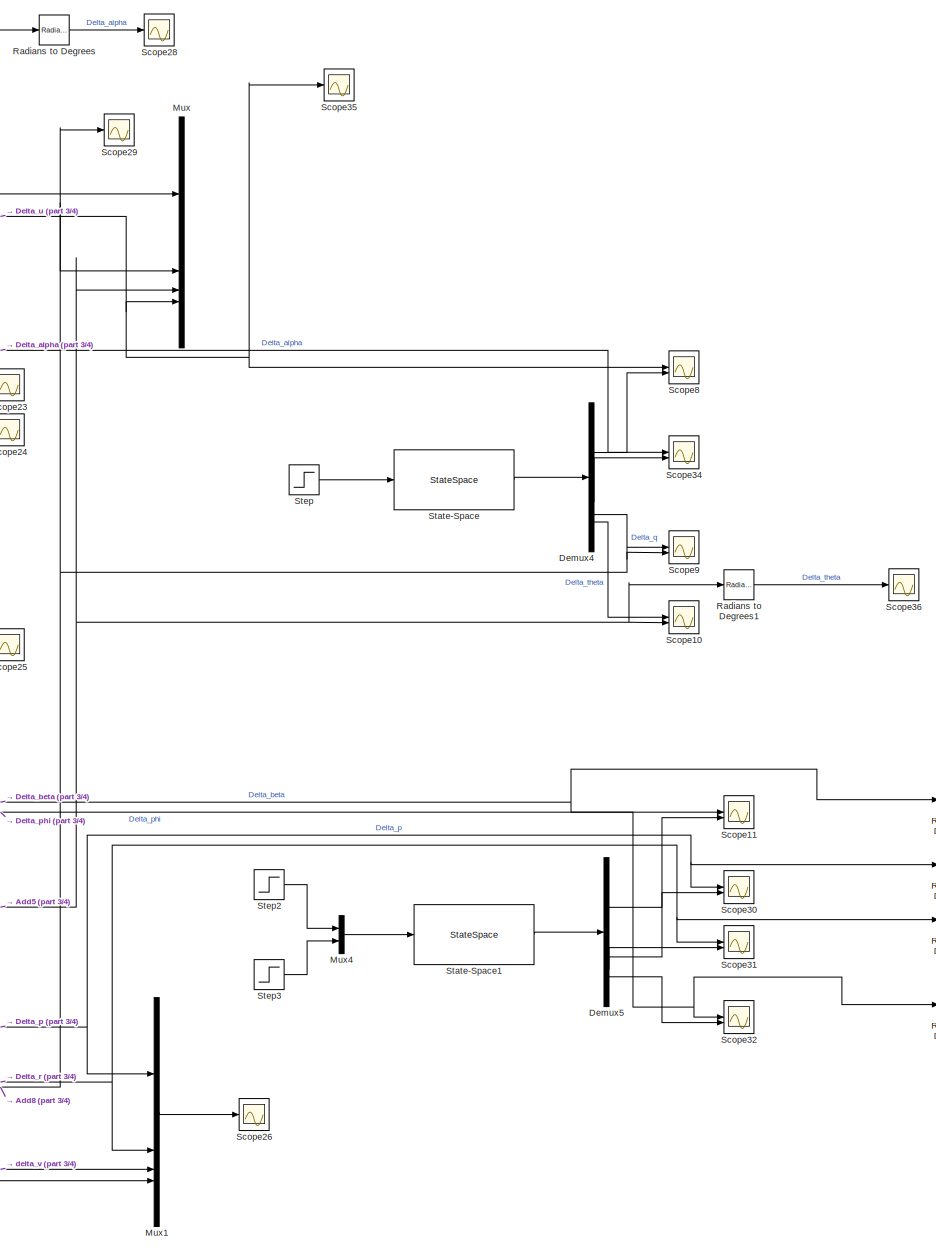
[diagram: root canvas - part 1/4, right side, full height]
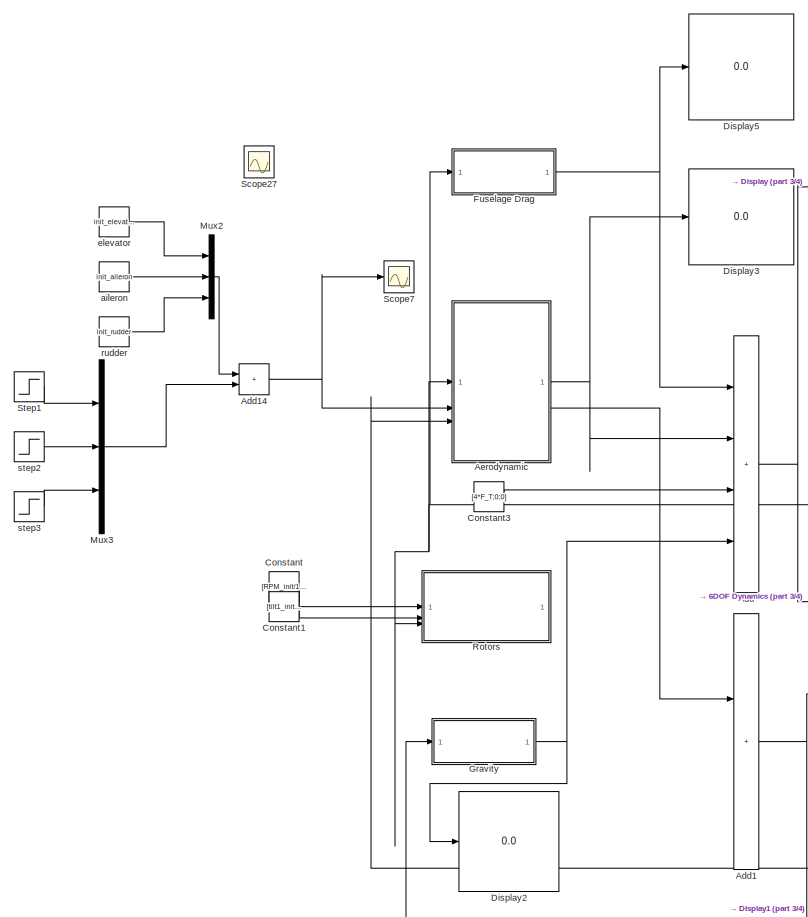
[diagram: root canvas - part 2/4, middle left region]
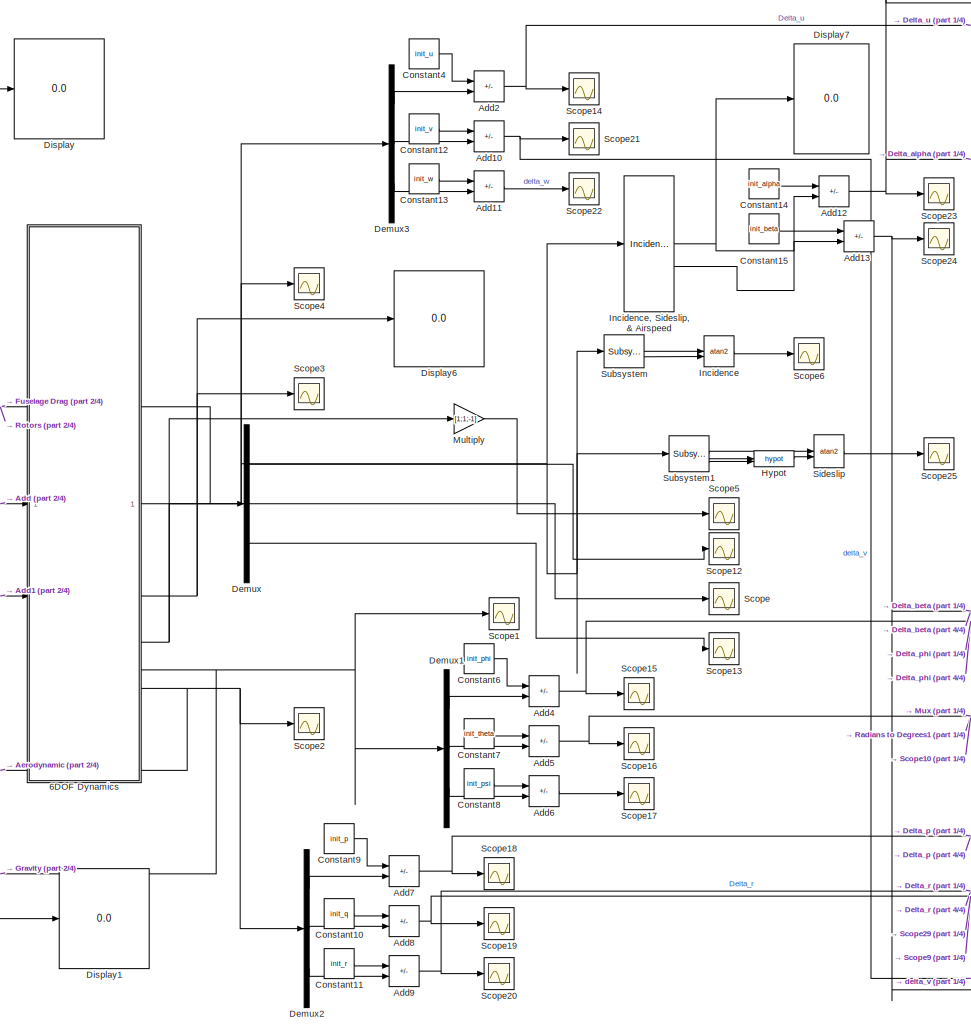
[diagram: root canvas - part 3/4, center side, full height]
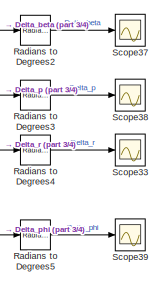
[diagram: root canvas - part 4/4, bottom right region]
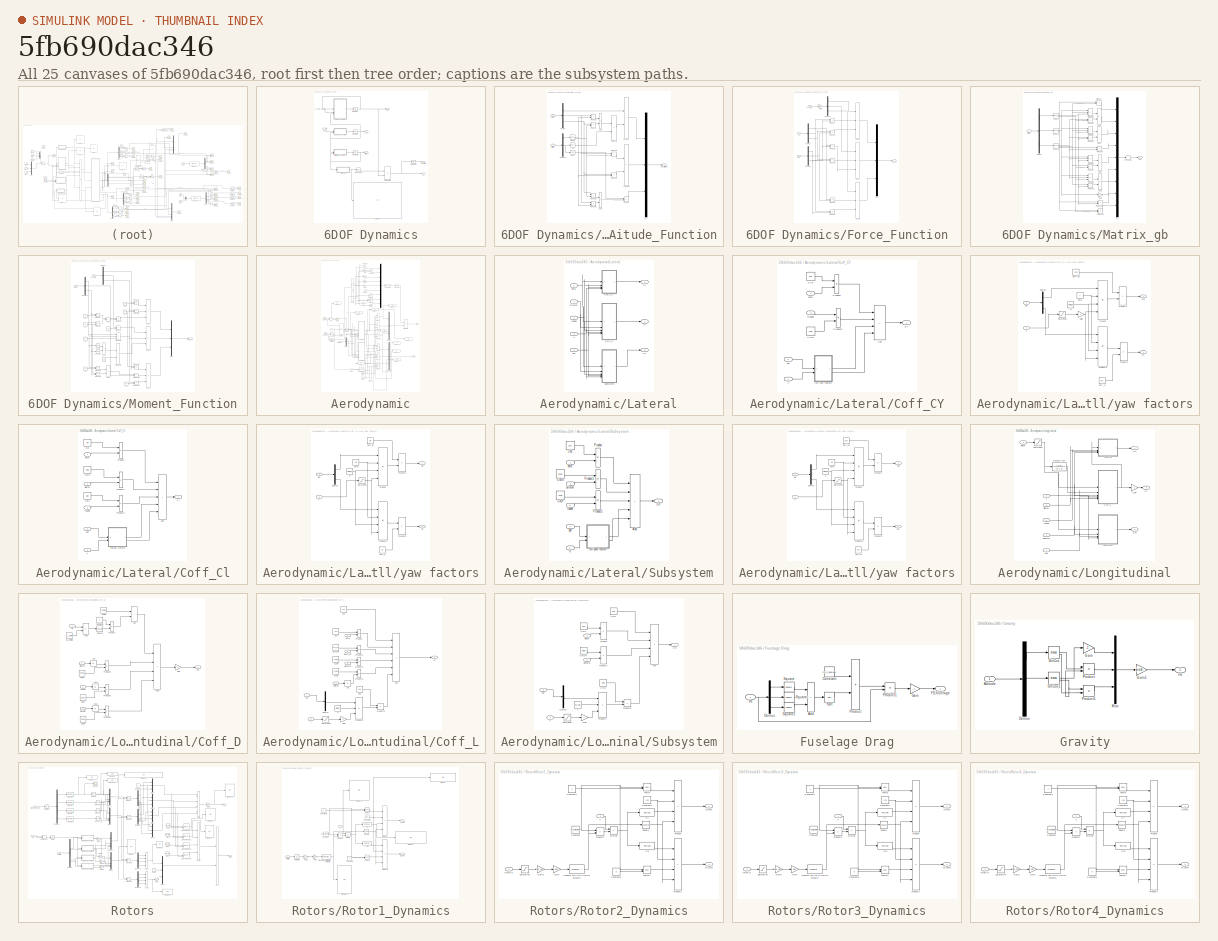
[diagram: thumbnail index - all 25 canvases of the model, root first then tree order]
MODEL slx_5fb690dac346
KIND model
CONFIG AbsTol = auto
CONFIG EnableMultiTasking = off
CONFIG FixedStep = 1e-4
CONFIG MaxStep = auto
CONFIG MinStep = auto
CONFIG RelTol = 1e-3
CONFIG SampleTimeConstraint = Unconstrained
CONFIG SolverName = FixedStepAuto
CONFIG StartTime = 0.0
CONFIG StopTime = 30
BLOCK [SubSystem] 6DOF Dynamics
BLOCK [Outport] 6DOF Dynamics/Attitude
  Port = 4
BLOCK [SubSystem] 6DOF Dynamics/Attitude_Function
BLOCK [Sum] 6DOF Dynamics/Attitude_Function/Add
  IconShape = rectangular
BLOCK [Sum] 6DOF Dynamics/Attitude_Function/Add1
  IconShape = rectangular
BLOCK [Trigonometry] 6DOF Dynamics/Attitude_Function/Cos
  Operator = cos
BLOCK [Demux] 6DOF Dynamics/Attitude_Function/Demux
  Outputs = 3
BLOCK [Demux] 6DOF Dynamics/Attitude_Function/Demux1
  Outputs = 3
BLOCK [Mux] 6DOF Dynamics/Attitude_Function/Mux
  DisplayOption = bar
  Inputs = 3
BLOCK [Product] 6DOF Dynamics/Attitude_Function/Product
BLOCK [Product] 6DOF Dynamics/Attitude_Function/Product1
BLOCK [Product] 6DOF Dynamics/Attitude_Function/Product2
BLOCK [Product] 6DOF Dynamics/Attitude_Function/Product3
BLOCK [Product] 6DOF Dynamics/Attitude_Function/Product4
BLOCK [Product] 6DOF Dynamics/Attitude_Function/Product5
BLOCK [Product] 6DOF Dynamics/Attitude_Function/Product6
BLOCK [Trigonometry] 6DOF Dynamics/Attitude_Function/SinCos
  Operator = sincos
BLOCK [Trigonometry] 6DOF Dynamics/Attitude_Function/Tan
  Operator = tan
BLOCK [Inport] 6DOF Dynamics/Attitude_Function/attitude
  Port = 2
BLOCK [Outport] 6DOF Dynamics/Attitude_Function/dot_attitude
BLOCK [Sum] 6DOF Dynamics/Attitude_Function/dot_phi
  IconShape = rectangular
BLOCK [Product] 6DOF Dynamics/Attitude_Function/dot_psi
  Inputs = /*
BLOCK [Sum] 6DOF Dynamics/Attitude_Function/dot_theta
  IconShape = rectangular
  Inputs = +-
BLOCK [Inport] 6DOF Dynamics/Attitude_Function/pqr
BLOCK [Display] 6DOF Dynamics/Display
  Decimation = 1
BLOCK [Inport] 6DOF Dynamics/F_Total
BLOCK [SubSystem] 6DOF Dynamics/Force_Function
BLOCK [Demux] 6DOF Dynamics/Force_Function/Demux
  Outputs = 3
BLOCK [Demux] 6DOF Dynamics/Force_Function/Demux1
  Outputs = 3
BLOCK [Demux] 6DOF Dynamics/Force_Function/Demux2
  Outputs = 3
BLOCK [Inport] 6DOF Dynamics/Force_Function/F_Total
  Port = 2
BLOCK [Gain] 6DOF Dynamics/Force_Function/Gain
  Gain = 1/aircraft_mass
BLOCK [Mux] 6DOF Dynamics/Force_Function/Mux
  DisplayOption = bar
  Inputs = 3
BLOCK [Product] 6DOF Dynamics/Force_Function/Product
BLOCK [Product] 6DOF Dynamics/Force_Function/Product1
BLOCK [Product] 6DOF Dynamics/Force_Function/Product2
BLOCK [Product] 6DOF Dynamics/Force_Function/Product3
BLOCK [Product] 6DOF Dynamics/Force_Function/Product4
BLOCK [Product] 6DOF Dynamics/Force_Function/Product5
BLOCK [Inport] 6DOF Dynamics/Force_Function/Vb
BLOCK [Outport] 6DOF Dynamics/Force_Function/dot_Vb
BLOCK [Sum] 6DOF Dynamics/Force_Function/dot_u
  IconShape = rectangular
  Inputs = ++-
BLOCK [Sum] 6DOF Dynamics/Force_Function/dot_v
  IconShape = rectangular
  Inputs = ++-
BLOCK [Sum] 6DOF Dynamics/Force_Function/dot_w
  IconShape = rectangular
  Inputs = ++-
BLOCK [Inport] 6DOF Dynamics/Force_Function/pqr
  Port = 3
BLOCK [Integrator] 6DOF Dynamics/Integrator
  InitialCondition = [init_u;init_v;init_w]
BLOCK [Integrator] 6DOF Dynamics/Integrator1
  InitialCondition = [init_phi;init_theta;init_psi]
  WrapState = on
BLOCK [Integrator] 6DOF Dynamics/Integrator2
  InitialCondition = [init_x;init_y;-init_h]
BLOCK [Integrator] 6DOF Dynamics/Integrator3
  InitialCondition = [init_p;init_q;init_r]
BLOCK [Inport] 6DOF Dynamics/M_Total
  Port = 2
BLOCK [Product] 6DOF Dynamics/MatrixMultiply
  Multiplication = Matrix(*)
BLOCK [SubSystem] 6DOF Dynamics/Matrix_gb
BLOCK [Sum] 6DOF Dynamics/Matrix_gb/Add
  IconShape = rectangular
  Inputs = +-
BLOCK [Sum] 6DOF Dynamics/Matrix_gb/Add1
  IconShape = rectangular
BLOCK [Sum] 6DOF Dynamics/Matrix_gb/Add2
  IconShape = rectangular
BLOCK [Sum] 6DOF Dynamics/Matrix_gb/Add3
  IconShape = rectangular
  Inputs = +-
BLOCK [Inport] 6DOF Dynamics/Matrix_gb/Attitude
BLOCK [Demux] 6DOF Dynamics/Matrix_gb/Demux
  Outputs = 3
BLOCK [Gain] 6DOF Dynamics/Matrix_gb/Gain
  Gain = -1
BLOCK [Outport] 6DOF Dynamics/Matrix_gb/Mgb
BLOCK [Mux] 6DOF Dynamics/Matrix_gb/Mux
  DisplayOption = bar
  Inputs = 9
BLOCK [Product] 6DOF Dynamics/Matrix_gb/Product
BLOCK [Product] 6DOF Dynamics/Matrix_gb/Product1
  Inputs = 3
BLOCK [Product] 6DOF Dynamics/Matrix_gb/Product10
BLOCK [Product] 6DOF Dynamics/Matrix_gb/Product11
BLOCK [Product] 6DOF Dynamics/Matrix_gb/Product2
BLOCK [Product] 6DOF Dynamics/Matrix_gb/Product3
  Inputs = 3
BLOCK [Product] 6DOF Dynamics/Matrix_gb/Product4
BLOCK [Product] 6DOF Dynamics/Matrix_gb/Product5
BLOCK [Product] 6DOF Dynamics/Matrix_gb/Product6
  Inputs = 3
BLOCK [Product] 6DOF Dynamics/Matrix_gb/Product7
BLOCK [Product] 6DOF Dynamics/Matrix_gb/Product8
  Inputs = 3
BLOCK [Product] 6DOF Dynamics/Matrix_gb/Product9
BLOCK [Reshape] 6DOF Dynamics/Matrix_gb/Reshape
  OutputDimensionality = Customize
  OutputDimensions = [3,3]
BLOCK [Trigonometry] 6DOF Dynamics/Matrix_gb/SinCos
  Operator = sincos
BLOCK [Trigonometry] 6DOF Dynamics/Matrix_gb/SinCos1
  Operator = sincos
BLOCK [Trigonometry] 6DOF Dynamics/Matrix_gb/SinCos2
  Operator = sincos
BLOCK [SubSystem] 6DOF Dynamics/Moment_Function
BLOCK [Sum] 6DOF Dynamics/Moment_Function/Add
  IconShape = rectangular
BLOCK [Sum] 6DOF Dynamics/Moment_Function/Add1
  IconShape = rectangular
  Inputs = +-
BLOCK [Sum] 6DOF Dynamics/Moment_Function/Add2
  IconShape = rectangular
  Inputs = +-
BLOCK [Demux] 6DOF Dynamics/Moment_Function/Demux
  Outputs = 3
BLOCK [Demux] 6DOF Dynamics/Moment_Function/Demux1
  Outputs = 3
BLOCK [Inport] 6DOF Dynamics/Moment_Function/M_Total
BLOCK [Mux] 6DOF Dynamics/Moment_Function/Mux
  DisplayOption = bar
  Inputs = 3
BLOCK [Product] 6DOF Dynamics/Moment_Function/Product
BLOCK [Product] 6DOF Dynamics/Moment_Function/Product1
BLOCK [Product] 6DOF Dynamics/Moment_Function/Product10
BLOCK [Product] 6DOF Dynamics/Moment_Function/Product11
BLOCK [Product] 6DOF Dynamics/Moment_Function/Product12
BLOCK [Product] 6DOF Dynamics/Moment_Function/Product2
BLOCK [Product] 6DOF Dynamics/Moment_Function/Product3
BLOCK [Product] 6DOF Dynamics/Moment_Function/Product4
BLOCK [Product] 6DOF Dynamics/Moment_Function/Product5
  Inputs = 3
BLOCK [Product] 6DOF Dynamics/Moment_Function/Product6
BLOCK [Product] 6DOF Dynamics/Moment_Function/Product7
BLOCK [Product] 6DOF Dynamics/Moment_Function/Product8
BLOCK [Product] 6DOF Dynamics/Moment_Function/Product9
BLOCK [Math] 6DOF Dynamics/Moment_Function/Square
  Operator = square
BLOCK [Math] 6DOF Dynamics/Moment_Function/Square1
  Operator = square
BLOCK [Constant] 6DOF Dynamics/Moment_Function/c1
  Value = c1
BLOCK [Constant] 6DOF Dynamics/Moment_Function/c2
  Value = c2
BLOCK [Constant] 6DOF Dynamics/Moment_Function/c3
  Value = c3
BLOCK [Constant] 6DOF Dynamics/Moment_Function/c4
  Value = c4
BLOCK [Constant] 6DOF Dynamics/Moment_Function/c5
  Value = c5
BLOCK [Constant] 6DOF Dynamics/Moment_Function/c6
  Value = c6
BLOCK [Constant] 6DOF Dynamics/Moment_Function/c7
  Value = c7
BLOCK [Constant] 6DOF Dynamics/Moment_Function/c8
  Value = c8
BLOCK [Constant] 6DOF Dynamics/Moment_Function/c9
  Value = c9
BLOCK [Sum] 6DOF Dynamics/Moment_Function/dot_p
  IconShape = rectangular
  Inputs = +++
BLOCK [Outport] 6DOF Dynamics/Moment_Function/dot_pqr
BLOCK [Sum] 6DOF Dynamics/Moment_Function/dot_q
  IconShape = rectangular
  Inputs = +-+
BLOCK [Sum] 6DOF Dynamics/Moment_Function/dot_r
  IconShape = rectangular
  Inputs = +++
BLOCK [Inport] 6DOF Dynamics/Moment_Function/pqr
  Port = 2
BLOCK [Math] 6DOF Dynamics/Transpose
  Operator = transpose
BLOCK [Outport] 6DOF Dynamics/Vb
BLOCK [Outport] 6DOF Dynamics/Ve
  Port = 2
BLOCK [Outport] 6DOF Dynamics/position
  Port = 3
BLOCK [Outport] 6DOF Dynamics/pqr
  Port = 5
BLOCK [Sum] Add
  IconShape = rectangular
  Inputs = ++++
BLOCK [Sum] Add1
  IconShape = rectangular
BLOCK [Sum] Add10
  IconShape = rectangular
  Inputs = -+
BLOCK [Sum] Add11
  IconShape = rectangular
  Inputs = -+
BLOCK [Sum] Add12
  IconShape = rectangular
  Inputs = -+
BLOCK [Sum] Add13
  IconShape = rectangular
  Inputs = -+
BLOCK [Sum] Add14
  IconShape = rectangular
BLOCK [Sum] Add2
  IconShape = rectangular
  Inputs = -+
BLOCK [Sum] Add4
  IconShape = rectangular
  Inputs = -+
BLOCK [Sum] Add5
  IconShape = rectangular
  Inputs = -+
BLOCK [Sum] Add6
  IconShape = rectangular
  Inputs = -+
BLOCK [Sum] Add7
  IconShape = rectangular
  Inputs = -+
BLOCK [Sum] Add8
  IconShape = rectangular
  Inputs = -+
BLOCK [Sum] Add9
  IconShape = rectangular
  Inputs = -+
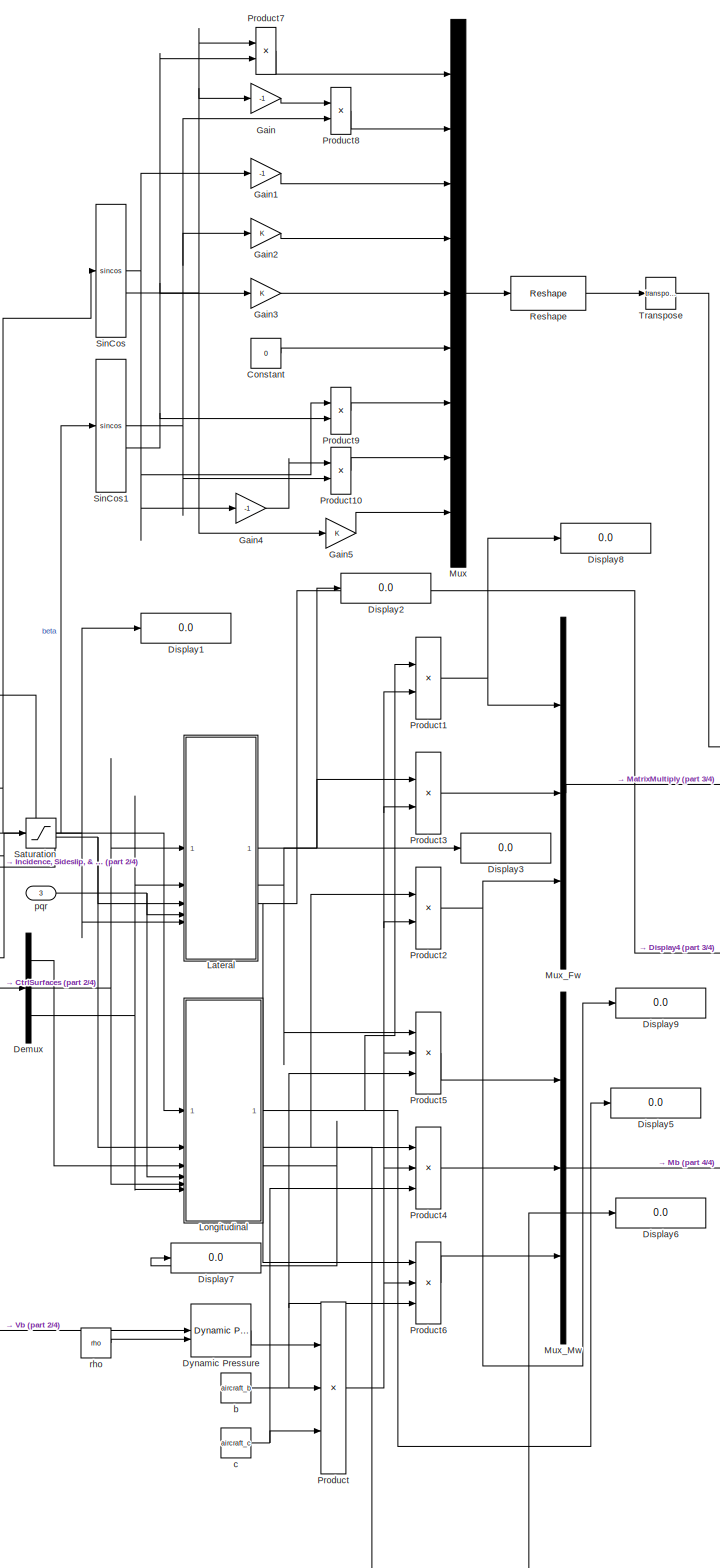
[diagram: Aerodynamic - part 1/4, center side, full height]
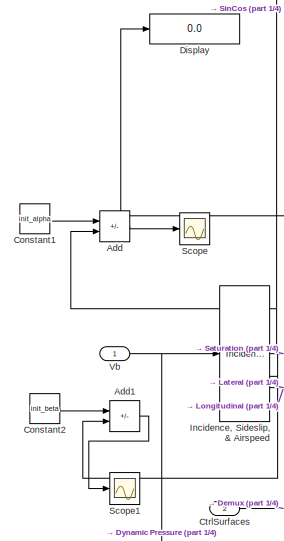
[diagram: Aerodynamic - part 2/4, middle left region]
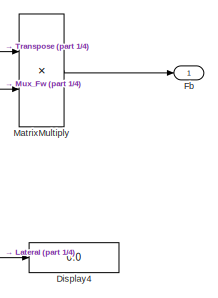
[diagram: Aerodynamic - part 3/4, middle right region]
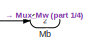
[diagram: Aerodynamic - part 4/4, bottom right region]
BLOCK [SubSystem] Aerodynamic
BLOCK [Sum] Aerodynamic/Add
  IconShape = rectangular
  Inputs = -+
BLOCK [Sum] Aerodynamic/Add1
  IconShape = rectangular
  Inputs = -+
BLOCK [Constant] Aerodynamic/Constant
  Value = 0
BLOCK [Constant] Aerodynamic/Constant1
  Value = init_alpha
BLOCK [Constant] Aerodynamic/Constant2
  Value = init_beta
BLOCK [Inport] Aerodynamic/CtrlSurfaces
  Port = 2
BLOCK [Demux] Aerodynamic/Demux
  Outputs = 3
BLOCK [Display] Aerodynamic/Display
  Decimation = 1
  Format = long
BLOCK [Display] Aerodynamic/Display1
  Decimation = 1
BLOCK [Display] Aerodynamic/Display2
  Decimation = 1
BLOCK [Display] Aerodynamic/Display3
  Decimation = 1
BLOCK [Display] Aerodynamic/Display4
  Decimation = 1
BLOCK [Display] Aerodynamic/Display5
  Decimation = 1
  Format = long
BLOCK [Display] Aerodynamic/Display6
  Decimation = 1
BLOCK [Display] Aerodynamic/Display7
  Decimation = 1
BLOCK [Display] Aerodynamic/Display8
  Decimation = 1
BLOCK [Display] Aerodynamic/Display9
  Decimation = 1
BLOCK [Reference] Aerodynamic/Dynamic Pressure  REF=aerolibasang/Dynamic Pressure
  SourceBlock = aerolibasang/Dynamic Pressure
  SourceType = Dynamic Pressure
BLOCK [Outport] Aerodynamic/Fb
BLOCK [Gain] Aerodynamic/Gain
  Gain = -1
BLOCK [Gain] Aerodynamic/Gain1
  Gain = -1
BLOCK [Gain] Aerodynamic/Gain2
BLOCK [Gain] Aerodynamic/Gain3
BLOCK [Gain] Aerodynamic/Gain4
  Gain = -1
BLOCK [Gain] Aerodynamic/Gain5
BLOCK [Reference] Aerodynamic/Incidence, Sideslip, & Airspeed  REF=aerolibasang/Incidence, Sideslip,
& Airspeed
  SourceBlock = aerolibasang/Incidence, Sideslip,\n& Airspeed
  SourceType = Incidence,Sideslip,&Airspeed
BLOCK [SubSystem] Aerodynamic/Lateral
BLOCK [Outport] Aerodynamic/Lateral/CY
BLOCK [Outport] Aerodynamic/Lateral/Cl
  Port = 2
BLOCK [Outport] Aerodynamic/Lateral/Cn
  Port = 3
BLOCK [SubSystem] Aerodynamic/Lateral/Coff_CY
BLOCK [Sum] Aerodynamic/Lateral/Coff_CY/Add
  IconShape = rectangular
  Inputs = ++++
BLOCK [Outport] Aerodynamic/Lateral/Coff_CY/CY
BLOCK [Constant] Aerodynamic/Lateral/Coff_CY/CYDr
  Value = CYDr
BLOCK [Constant] Aerodynamic/Lateral/Coff_CY/CYb
  Value = CYb
BLOCK [Product] Aerodynamic/Lateral/Coff_CY/Product
BLOCK [Product] Aerodynamic/Lateral/Coff_CY/Product1
BLOCK [Inport] Aerodynamic/Lateral/Coff_CY/Rudder
  Port = 2
BLOCK [Inport] Aerodynamic/Lateral/Coff_CY/V
  Port = 4
BLOCK [Inport] Aerodynamic/Lateral/Coff_CY/beta
BLOCK [Inport] Aerodynamic/Lateral/Coff_CY/pqr
  Port = 3
BLOCK [SubSystem] Aerodynamic/Lateral/Coff_CY/roll//yaw factors
BLOCK [Outport] Aerodynamic/Lateral/Coff_CY/roll//yaw factors/CYp
BLOCK [Outport] Aerodynamic/Lateral/Coff_CY/roll//yaw factors/CYr
  Port = 2
BLOCK [Constant] Aerodynamic/Lateral/Coff_CY/roll//yaw factors/Cmq
BLOCK [Constant] Aerodynamic/Lateral/Coff_CY/roll//yaw factors/Coff_Yp
  Value = CYp
BLOCK [Constant] Aerodynamic/Lateral/Coff_CY/roll//yaw factors/Coff_Yr
  Value = CYr
BLOCK [Demux] Aerodynamic/Lateral/Coff_CY/roll//yaw factors/Demux
  Outputs = 3
BLOCK [Gain] Aerodynamic/Lateral/Coff_CY/roll//yaw factors/Gain
  Gain = 2
BLOCK [Product] Aerodynamic/Lateral/Coff_CY/roll//yaw factors/Product
  Inputs = ***/
BLOCK [Product] Aerodynamic/Lateral/Coff_CY/roll//yaw factors/Product1
BLOCK [Product] Aerodynamic/Lateral/Coff_CY/roll//yaw factors/Product2
  Inputs = ***/
BLOCK [Product] Aerodynamic/Lateral/Coff_CY/roll//yaw factors/Product3
BLOCK [Saturate] Aerodynamic/Lateral/Coff_CY/roll//yaw factors/Saturation
  LowerLimit = 0.1
  UpperLimit = inf
BLOCK [Inport] Aerodynamic/Lateral/Coff_CY/roll//yaw factors/V
  Port = 2
BLOCK [Constant] Aerodynamic/Lateral/Coff_CY/roll//yaw factors/b
  Value = aircraft_b
BLOCK [Inport] Aerodynamic/Lateral/Coff_CY/roll//yaw factors/pqr
BLOCK [SubSystem] Aerodynamic/Lateral/Coff_Cl
BLOCK [Sum] Aerodynamic/Lateral/Coff_Cl/Add
  IconShape = rectangular
  Inputs = +++++
BLOCK [Outport] Aerodynamic/Lateral/Coff_Cl/Cl
BLOCK [Constant] Aerodynamic/Lateral/Coff_Cl/ClDa
  Value = ClDa
BLOCK [Constant] Aerodynamic/Lateral/Coff_Cl/ClDr
  Value = ClDr
BLOCK [Constant] Aerodynamic/Lateral/Coff_Cl/Clb
  Value = Clb
BLOCK [Product] Aerodynamic/Lateral/Coff_Cl/Product
BLOCK [Product] Aerodynamic/Lateral/Coff_Cl/Product1
BLOCK [Product] Aerodynamic/Lateral/Coff_Cl/Product2
BLOCK [Inport] Aerodynamic/Lateral/Coff_Cl/V
  Port = 4
BLOCK [Inport] Aerodynamic/Lateral/Coff_Cl/aileron
  Port = 2
BLOCK [Inport] Aerodynamic/Lateral/Coff_Cl/beta
BLOCK [Inport] Aerodynamic/Lateral/Coff_Cl/pqr
  Port = 5
BLOCK [SubSystem] Aerodynamic/Lateral/Coff_Cl/roll//yaw factors
BLOCK [Outport] Aerodynamic/Lateral/Coff_Cl/roll//yaw factors/Clp
BLOCK [Outport] Aerodynamic/Lateral/Coff_Cl/roll//yaw factors/Clr
  Port = 2
BLOCK [Constant] Aerodynamic/Lateral/Coff_Cl/roll//yaw factors/Cmq
  Value = 0.5
BLOCK [Constant] Aerodynamic/Lateral/Coff_Cl/roll//yaw factors/Coff_lp
  Value = Clp
BLOCK [Constant] Aerodynamic/Lateral/Coff_Cl/roll//yaw factors/Coff_lr
  Value = Clr
BLOCK [Demux] Aerodynamic/Lateral/Coff_Cl/roll//yaw factors/Demux
  Outputs = 3
BLOCK [Product] Aerodynamic/Lateral/Coff_Cl/roll//yaw factors/Product
  Inputs = ***/
BLOCK [Product] Aerodynamic/Lateral/Coff_Cl/roll//yaw factors/Product1
BLOCK [Product] Aerodynamic/Lateral/Coff_Cl/roll//yaw factors/Product2
  Inputs = ***/
BLOCK [Product] Aerodynamic/Lateral/Coff_Cl/roll//yaw factors/Product3
BLOCK [Saturate] Aerodynamic/Lateral/Coff_Cl/roll//yaw factors/Saturation
  LowerLimit = 0.1
  UpperLimit = inf
BLOCK [Inport] Aerodynamic/Lateral/Coff_Cl/roll//yaw factors/V
  Port = 2
BLOCK [Constant] Aerodynamic/Lateral/Coff_Cl/roll//yaw factors/b
  Value = aircraft_b
BLOCK [Inport] Aerodynamic/Lateral/Coff_Cl/roll//yaw factors/pqr
BLOCK [Inport] Aerodynamic/Lateral/Coff_Cl/rudder
  Port = 3
BLOCK [SubSystem] Aerodynamic/Lateral/Subsystem
BLOCK [Sum] Aerodynamic/Lateral/Subsystem/Add
  IconShape = rectangular
  Inputs = +++++
BLOCK [Outport] Aerodynamic/Lateral/Subsystem/Cn
BLOCK [Constant] Aerodynamic/Lateral/Subsystem/CnDa
  Value = CnDa
BLOCK [Constant] Aerodynamic/Lateral/Subsystem/CnDr
  Value = CnDr
BLOCK [Constant] Aerodynamic/Lateral/Subsystem/Cnb
  Value = Cnb
BLOCK [Product] Aerodynamic/Lateral/Subsystem/Product
BLOCK [Product] Aerodynamic/Lateral/Subsystem/Product1
BLOCK [Product] Aerodynamic/Lateral/Subsystem/Product2
BLOCK [Inport] Aerodynamic/Lateral/Subsystem/V
  Port = 5
BLOCK [Inport] Aerodynamic/Lateral/Subsystem/aileron
  Port = 2
BLOCK [Inport] Aerodynamic/Lateral/Subsystem/beta
BLOCK [Inport] Aerodynamic/Lateral/Subsystem/pqr
  Port = 4
BLOCK [SubSystem] Aerodynamic/Lateral/Subsystem/roll//yaw factors
BLOCK [Constant] Aerodynamic/Lateral/Subsystem/roll//yaw factors/Cmq
  Value = 0.5
BLOCK [Outport] Aerodynamic/Lateral/Subsystem/roll//yaw factors/Cnp
BLOCK [Outport] Aerodynamic/Lateral/Subsystem/roll//yaw factors/Cnr
  Port = 2
BLOCK [Constant] Aerodynamic/Lateral/Subsystem/roll//yaw factors/Coff_np
  Value = Cnp
BLOCK [Constant] Aerodynamic/Lateral/Subsystem/roll//yaw factors/Coff_nr
  Value = Cnr
BLOCK [Demux] Aerodynamic/Lateral/Subsystem/roll//yaw factors/Demux
  Outputs = 3
BLOCK [Product] Aerodynamic/Lateral/Subsystem/roll//yaw factors/Product
  Inputs = ***/
BLOCK [Product] Aerodynamic/Lateral/Subsystem/roll//yaw factors/Product1
BLOCK [Product] Aerodynamic/Lateral/Subsystem/roll//yaw factors/Product2
  Inputs = ***/
BLOCK [Product] Aerodynamic/Lateral/Subsystem/roll//yaw factors/Product3
BLOCK [Saturate] Aerodynamic/Lateral/Subsystem/roll//yaw factors/Saturation
  LowerLimit = 0.1
  UpperLimit = inf
BLOCK [Inport] Aerodynamic/Lateral/Subsystem/roll//yaw factors/V
  Port = 2
BLOCK [Constant] Aerodynamic/Lateral/Subsystem/roll//yaw factors/b
  Value = aircraft_b
BLOCK [Inport] Aerodynamic/Lateral/Subsystem/roll//yaw factors/pqr
BLOCK [Inport] Aerodynamic/Lateral/Subsystem/rudder
  Port = 3
BLOCK [Inport] Aerodynamic/Lateral/V
  Port = 3
BLOCK [Inport] Aerodynamic/Lateral/aileron
BLOCK [Inport] Aerodynamic/Lateral/beta
  Port = 5
BLOCK [Inport] Aerodynamic/Lateral/pqr
  Port = 4
BLOCK [Inport] Aerodynamic/Lateral/rudder
  Port = 2
BLOCK [SubSystem] Aerodynamic/Longitudinal
BLOCK [Outport] Aerodynamic/Longitudinal/CD
BLOCK [Outport] Aerodynamic/Longitudinal/CL
  Port = 2
BLOCK [Outport] Aerodynamic/Longitudinal/Cm
  Port = 3
BLOCK [SubSystem] Aerodynamic/Longitudinal/Coff_D
BLOCK [Abs] Aerodynamic/Longitudinal/Coff_D/Abs
  SaturateOnIntegerOverflow = off
BLOCK [Abs] Aerodynamic/Longitudinal/Coff_D/Abs1
  SaturateOnIntegerOverflow = off
BLOCK [Abs] Aerodynamic/Longitudinal/Coff_D/Abs2
  SaturateOnIntegerOverflow = off
BLOCK [Sum] Aerodynamic/Longitudinal/Coff_D/Add
  IconShape = rectangular
BLOCK [Sum] Aerodynamic/Longitudinal/Coff_D/Add1
  IconShape = rectangular
  Inputs = +-
BLOCK [Sum] Aerodynamic/Longitudinal/Coff_D/Add2
  IconShape = rectangular
  Inputs = ++++
BLOCK [Outport] Aerodynamic/Longitudinal/Coff_D/CD
BLOCK [Constant] Aerodynamic/Longitudinal/Coff_D/CDmin
  Value = CDmin
BLOCK [Inport] Aerodynamic/Longitudinal/Coff_D/CL
BLOCK [Constant] Aerodynamic/Longitudinal/Coff_D/CL_CDmin
  Value = CL_CDmin
BLOCK [Constant] Aerodynamic/Longitudinal/Coff_D/CdDa
  Value = CdDa
BLOCK [Constant] Aerodynamic/Longitudinal/Coff_D/CdDe
  Value = CdDe
BLOCK [Constant] Aerodynamic/Longitudinal/Coff_D/CdDr
  Value = CdDr
BLOCK [Constant] Aerodynamic/Longitudinal/Coff_D/Constant1
  Value = K
BLOCK [Gain] Aerodynamic/Longitudinal/Coff_D/Gain
  Gain = -1
BLOCK [Product] Aerodynamic/Longitudinal/Coff_D/Product
BLOCK [Product] Aerodynamic/Longitudinal/Coff_D/Product2
BLOCK [Product] Aerodynamic/Longitudinal/Coff_D/Product3
BLOCK [Product] Aerodynamic/Longitudinal/Coff_D/Product4
BLOCK [Math] Aerodynamic/Longitudinal/Coff_D/Square
  Operator = square
BLOCK [Inport] Aerodynamic/Longitudinal/Coff_D/aileron
  Port = 2
BLOCK [Inport] Aerodynamic/Longitudinal/Coff_D/elevator
  Port = 4
BLOCK [Inport] Aerodynamic/Longitudinal/Coff_D/rudder
  Port = 3
BLOCK [SubSystem] Aerodynamic/Longitudinal/Coff_L
BLOCK [Abs] Aerodynamic/Longitudinal/Coff_L/Abs
  SaturateOnIntegerOverflow = off
BLOCK [Sum] Aerodynamic/Longitudinal/Coff_L/Add
  IconShape = rectangular
  Inputs = ++++++
BLOCK [Outport] Aerodynamic/Longitudinal/Coff_L/CL
BLOCK [Constant] Aerodynamic/Longitudinal/Coff_L/CL0
  Value = CL0
BLOCK [Constant] Aerodynamic/Longitudinal/Coff_L/CLDa
  Value = CLDa
BLOCK [Constant] Aerodynamic/Longitudinal/Coff_L/CLDe
  Value = CLDe
BLOCK [Constant] Aerodynamic/Longitudinal/Coff_L/CLa
  Value = CLa
BLOCK [Constant] Aerodynamic/Longitudinal/Coff_L/CLa_dot
  Value = CLa_dot
BLOCK [Constant] Aerodynamic/Longitudinal/Coff_L/CLq
  Value = CLq
BLOCK [Demux] Aerodynamic/Longitudinal/Coff_L/Demux
  Outputs = 3
BLOCK [Gain] Aerodynamic/Longitudinal/Coff_L/Gain
  Gain = 2
BLOCK [Product] Aerodynamic/Longitudinal/Coff_L/Product
BLOCK [Product] Aerodynamic/Longitudinal/Coff_L/Product1
BLOCK [Product] Aerodynamic/Longitudinal/Coff_L/Product2
BLOCK [Product] Aerodynamic/Longitudinal/Coff_L/Product3
BLOCK [Product] Aerodynamic/Longitudinal/Coff_L/Product4
  Inputs = **/
BLOCK [Product] Aerodynamic/Longitudinal/Coff_L/Product5
BLOCK [Saturate] Aerodynamic/Longitudinal/Coff_L/Saturation
  LowerLimit = 0.1
  UpperLimit = inf
BLOCK [Inport] Aerodynamic/Longitudinal/Coff_L/V
  Port = 5
BLOCK [Inport] Aerodynamic/Longitudinal/Coff_L/aileron
  Port = 6
BLOCK [Inport] Aerodynamic/Longitudinal/Coff_L/alpha
BLOCK [Inport] Aerodynamic/Longitudinal/Coff_L/alpha_dot
  Port = 2
BLOCK [Constant] Aerodynamic/Longitudinal/Coff_L/c
  Value = aircraft_c
BLOCK [Inport] Aerodynamic/Longitudinal/Coff_L/elevator
  Port = 3
BLOCK [Inport] Aerodynamic/Longitudinal/Coff_L/pqr
  Port = 4
BLOCK [Gain] Aerodynamic/Longitudinal/Gain
  Gain = -1
BLOCK [Saturate] Aerodynamic/Longitudinal/Saturation
  LowerLimit = -14*pi/180
  UpperLimit = 14*pi/180
BLOCK [SubSystem] Aerodynamic/Longitudinal/Subsystem
BLOCK [Sum] Aerodynamic/Longitudinal/Subsystem/Add
  IconShape = rectangular
  Inputs = ++++
BLOCK [Outport] Aerodynamic/Longitudinal/Subsystem/Cm
BLOCK [Constant] Aerodynamic/Longitudinal/Subsystem/Cm0
  Value = Cm0
BLOCK [Constant] Aerodynamic/Longitudinal/Subsystem/CmDe
  Value = CmDe
BLOCK [Constant] Aerodynamic/Longitudinal/Subsystem/Cma
  Value = Cma
BLOCK [Constant] Aerodynamic/Longitudinal/Subsystem/Cmq
  Value = Cmq
BLOCK [Demux] Aerodynamic/Longitudinal/Subsystem/Demux
  Outputs = 3
BLOCK [Gain] Aerodynamic/Longitudinal/Subsystem/Gain
  Gain = 2
BLOCK [Product] Aerodynamic/Longitudinal/Subsystem/Product
BLOCK [Product] Aerodynamic/Longitudinal/Subsystem/Product1
BLOCK [Product] Aerodynamic/Longitudinal/Subsystem/Product4
  Inputs = **/
BLOCK [Product] Aerodynamic/Longitudinal/Subsystem/Product5
BLOCK [Saturate] Aerodynamic/Longitudinal/Subsystem/Saturation
  LowerLimit = 0.1
  UpperLimit = inf
BLOCK [Inport] Aerodynamic/Longitudinal/Subsystem/V
  Port = 4
BLOCK [Inport] Aerodynamic/Longitudinal/Subsystem/alpha
BLOCK [Constant] Aerodynamic/Longitudinal/Subsystem/c
  Value = aircraft_c
BLOCK [Inport] Aerodynamic/Longitudinal/Subsystem/elevator
  Port = 2
BLOCK [Inport] Aerodynamic/Longitudinal/Subsystem/pqr
  Port = 3
BLOCK [TransferFcn] Aerodynamic/Longitudinal/Transfer Fcn
  Denominator = [0.1 1]
  Numerator = [1 0]
BLOCK [Inport] Aerodynamic/Longitudinal/V
  Port = 2
BLOCK [Inport] Aerodynamic/Longitudinal/aileron
  Port = 5
BLOCK [Inport] Aerodynamic/Longitudinal/alpha
BLOCK [Inport] Aerodynamic/Longitudinal/elevator
  Port = 3
BLOCK [Inport] Aerodynamic/Longitudinal/pqr
  Port = 4
BLOCK [Inport] Aerodynamic/Longitudinal/rudder
  Port = 6
BLOCK [Product] Aerodynamic/MatrixMultiply
  Multiplication = Matrix(*)
BLOCK [Outport] Aerodynamic/Mb
  Port = 2
BLOCK [Mux] Aerodynamic/Mux
  DisplayOption = bar
  Inputs = 9
BLOCK [Mux] Aerodynamic/Mux_Fw
  DisplayOption = bar
  Inputs = 3
BLOCK [Mux] Aerodynamic/Mux_Mw
  DisplayOption = bar
  Inputs = 3
BLOCK [Product] Aerodynamic/Product
  Inputs = 3
BLOCK [Product] Aerodynamic/Product1
BLOCK [Product] Aerodynamic/Product10
BLOCK [Product] Aerodynamic/Product2
BLOCK [Product] Aerodynamic/Product3
BLOCK [Product] Aerodynamic/Product4
  Inputs = 3
BLOCK [Product] Aerodynamic/Product5
  Inputs = 3
BLOCK [Product] Aerodynamic/Product6
  Inputs = 3
BLOCK [Product] Aerodynamic/Product7
BLOCK [Product] Aerodynamic/Product8
BLOCK [Product] Aerodynamic/Product9
BLOCK [Reshape] Aerodynamic/Reshape
  OutputDimensionality = Customize
  OutputDimensions = [3,3]
BLOCK [Saturate] Aerodynamic/Saturation
  LowerLimit = -14*pi/180
  UpperLimit = 14*pi/180
BLOCK [Scope] Aerodynamic/Scope
  Floating = off
  NumInputPorts = 1
  ScopeSpecificationString = Simulink.scopes.TimeScopeBlockCfg('CurrentConfiguration', extmgr.ConfigurationSet(extmgr.Configuration('Core','General UI',true),extmgr.Configuration('Core','Source UI',true),extmgr.Configuration('Sources','WiredSimulink',true,'DataLoggingVariableName','ScopeData10'),extmgr.Configuration('Visuals','Time Domain',true,'SerializedDisplays',{struct('MinYLimReal','-0.000000007','MaxYLimReal','0.0000000...<+1395ch>
BLOCK [Scope] Aerodynamic/Scope1
  Floating = off
  NumInputPorts = 1
  ScopeSpecificationString = Simulink.scopes.TimeScopeBlockCfg('CurrentConfiguration', extmgr.ConfigurationSet(extmgr.Configuration('Core','General UI',true),extmgr.Configuration('Core','Source UI',true),extmgr.Configuration('Sources','WiredSimulink',true,'DataLoggingVariableName','ScopeData11'),extmgr.Configuration('Visuals','Time Domain',true),extmgr.Configuration('Tools','Plot Navigation',true),extmgr.Configuration('Tools'...<+41ch>
BLOCK [Trigonometry] Aerodynamic/SinCos
  Operator = sincos
BLOCK [Trigonometry] Aerodynamic/SinCos1
  Operator = sincos
BLOCK [Math] Aerodynamic/Transpose
  Operator = transpose
BLOCK [Inport] Aerodynamic/Vb
BLOCK [Constant] Aerodynamic/b
  Value = aircraft_b
BLOCK [Constant] Aerodynamic/c
  Value = aircraft_c
BLOCK [Inport] Aerodynamic/pqr
  Port = 3
BLOCK [Constant] Aerodynamic/rho
  Value = rho
BLOCK [Constant] Constant
  Value = [RPM_init/10000;RPM_init/10000;RPM_init/10000;RPM_init/10000]
BLOCK [Constant] Constant1
  Value = [tilt1_init;tilt2_init;tilt3_init;tilt4_init]
BLOCK [Constant] Constant10
  Value = init_q
BLOCK [Constant] Constant11
  Value = init_r
BLOCK [Constant] Constant12
  Value = init_v
BLOCK [Constant] Constant13
  Value = init_w
BLOCK [Constant] Constant14
  Value = init_alpha
BLOCK [Constant] Constant15
  Value = init_beta
BLOCK [Constant] Constant3
  Value = [4*F_T;0;0]
BLOCK [Constant] Constant4
  Value = init_u
BLOCK [Constant] Constant6
  Value = init_phi
BLOCK [Constant] Constant7
  Value = init_theta
BLOCK [Constant] Constant8
  Value = init_psi
BLOCK [Constant] Constant9
  Value = init_p
BLOCK [Demux] Demux
  Outputs = 3
BLOCK [Demux] Demux1
  Outputs = 3
BLOCK [Demux] Demux2
  Outputs = 3
BLOCK [Demux] Demux3
  Outputs = 3
BLOCK [Demux] Demux4
BLOCK [Demux] Demux5
BLOCK [Display] Display
  Decimation = 1
BLOCK [Display] Display1
  Decimation = 1
BLOCK [Display] Display2
  Decimation = 1
  Format = long
BLOCK [Display] Display3
  Decimation = 1
  Format = long
BLOCK [Display] Display5
  Decimation = 1
  Format = long
BLOCK [Display] Display6
  Decimation = 1
BLOCK [Display] Display7
  Decimation = 1
BLOCK [SubSystem] Fuselage Drag
BLOCK [Sum] Fuselage Drag/Add
  IconShape = rectangular
  Inputs = +++
BLOCK [Constant] Fuselage Drag/Constant
  Value = CD_fuselage
BLOCK [Demux] Fuselage Drag/Demux
  Outputs = 3
BLOCK [Outport] Fuselage Drag/FD,fuselage
BLOCK [Gain] Fuselage Drag/Gain
  Gain = -1
BLOCK [Product] Fuselage Drag/Product
BLOCK [Product] Fuselage Drag/Product1
BLOCK [Sqrt] Fuselage Drag/Sqrt
BLOCK [Math] Fuselage Drag/Square
  Operator = square
BLOCK [Math] Fuselage Drag/Square1
  Operator = square
BLOCK [Math] Fuselage Drag/Square2
  Operator = square
BLOCK [Inport] Fuselage Drag/Vb
BLOCK [SubSystem] Gravity
BLOCK [Inport] Gravity/Attitude
BLOCK [Demux] Gravity/Demux
  Outputs = 3
BLOCK [Outport] Gravity/Fb
BLOCK [Gain] Gravity/Gain
  Gain = -1
BLOCK [Gain] Gravity/Gain1
  Gain = aircraft_mass*g
BLOCK [Mux] Gravity/Mux
  DisplayOption = bar
  Inputs = 3
BLOCK [Product] Gravity/Product
BLOCK [Product] Gravity/Product1
BLOCK [Trigonometry] Gravity/SinCos
  Operator = sincos
BLOCK [Trigonometry] Gravity/SinCos1
  Operator = sincos
BLOCK [Math] Hypot
  Operator = hypot
BLOCK [Trigonometry] Incidence
  Operator = atan2
BLOCK [Reference] Incidence, Sideslip, & Airspeed  REF=aerolibasang/Incidence, Sideslip,
& Airspeed
  SourceBlock = aerolibasang/Incidence, Sideslip,\n& Airspeed
  SourceType = Incidence,Sideslip,&Airspeed
BLOCK [Gain] Multiply
  Gain = [1;1;-1]
BLOCK [Mux] Mux
  DisplayOption = bar
BLOCK [Mux] Mux1
  DisplayOption = bar
BLOCK [Mux] Mux2
  DisplayOption = bar
  Inputs = 3
BLOCK [Mux] Mux3
  DisplayOption = bar
  Inputs = 3
BLOCK [Mux] Mux4
  DisplayOption = bar
  Inputs = 2
BLOCK [Reference] Radians to Degrees  REF=simulink_extras/Transformations/Radians
to Degrees
  SourceBlock = simulink_extras/Transformations/Radians\nto Degrees
  SourceType = RadiansToDegrees
BLOCK [Reference] Radians to Degrees1  REF=simulink_extras/Transformations/Radians
to Degrees
  SourceBlock = simulink_extras/Transformations/Radians\nto Degrees
  SourceType = RadiansToDegrees
BLOCK [Reference] Radians to Degrees2  REF=simulink_extras/Transformations/Radians
to Degrees
  SourceBlock = simulink_extras/Transformations/Radians\nto Degrees
  SourceType = RadiansToDegrees
BLOCK [Reference] Radians to Degrees3  REF=simulink_extras/Transformations/Radians
to Degrees
  SourceBlock = simulink_extras/Transformations/Radians\nto Degrees
  SourceType = RadiansToDegrees
BLOCK [Reference] Radians to Degrees4  REF=simulink_extras/Transformations/Radians
to Degrees
  SourceBlock = simulink_extras/Transformations/Radians\nto Degrees
  SourceType = RadiansToDegrees
BLOCK [Reference] Radians to Degrees5  REF=simulink_extras/Transformations/Radians
to Degrees
  SourceBlock = simulink_extras/Transformations/Radians\nto Degrees
  SourceType = RadiansToDegrees
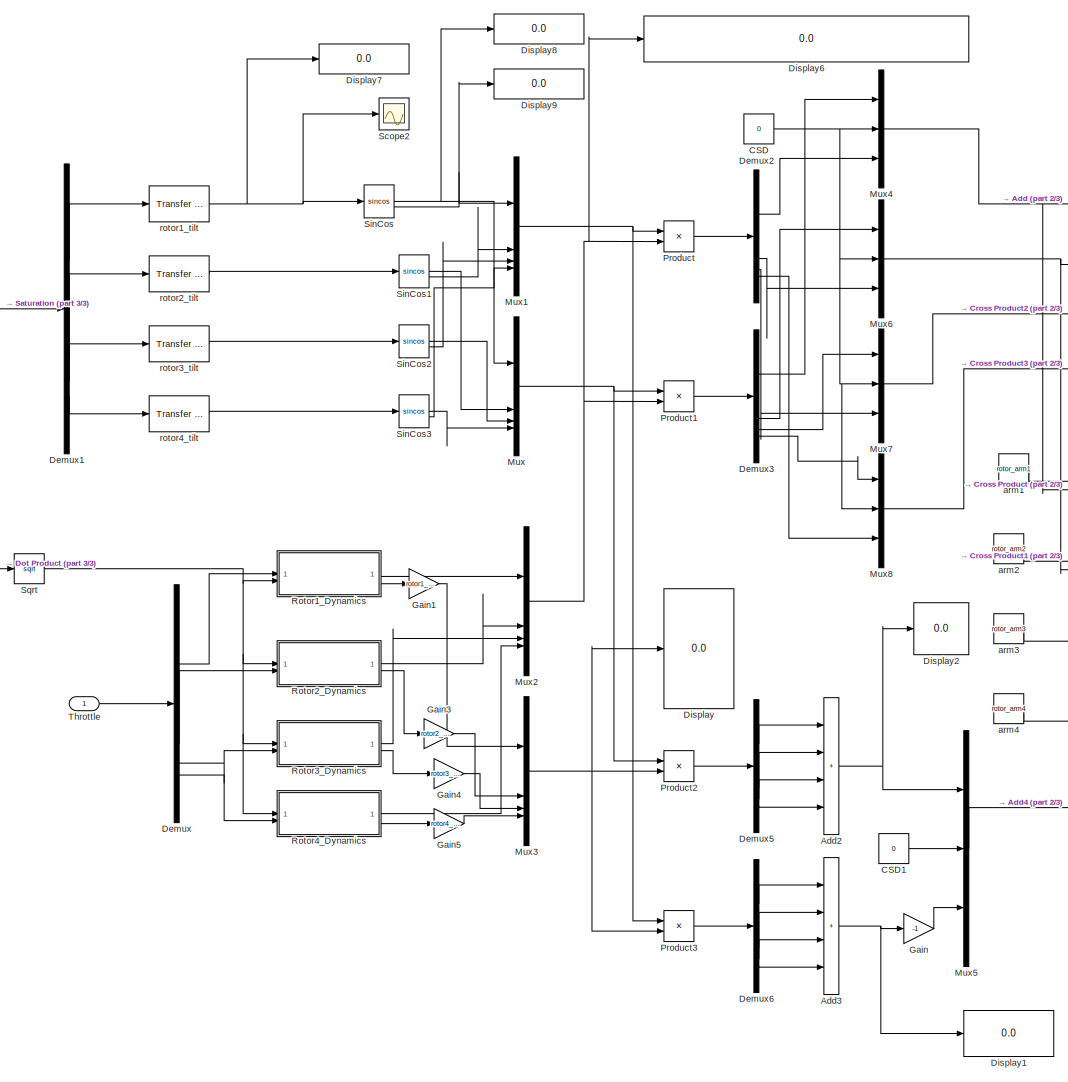
[diagram: Rotors - part 1/3, center side, full height]
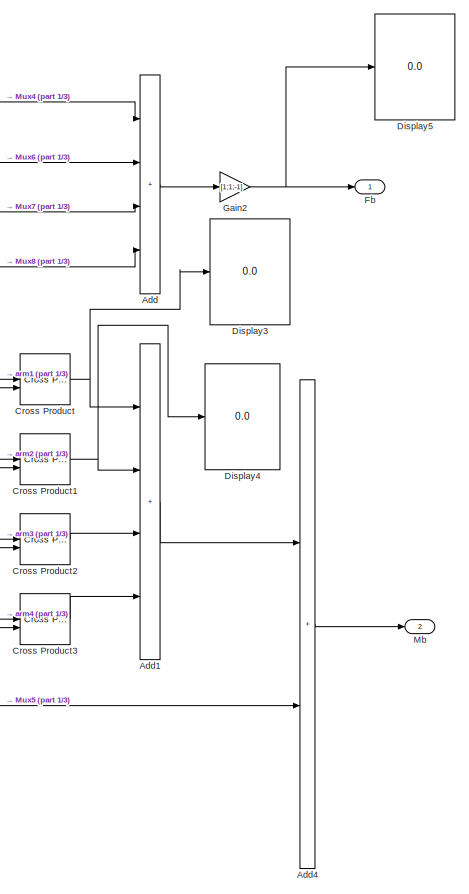
[diagram: Rotors - part 2/3, right side, full height]
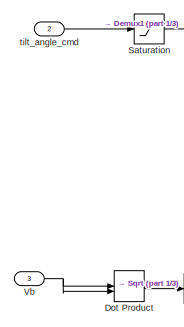
[diagram: Rotors - part 3/3, middle left region]
BLOCK [SubSystem] Rotors
BLOCK [Sum] Rotors/Add
  IconShape = rectangular
  Inputs = ++++
BLOCK [Sum] Rotors/Add1
  IconShape = rectangular
  Inputs = ++++
BLOCK [Sum] Rotors/Add2
  IconShape = rectangular
  Inputs = ++++
BLOCK [Sum] Rotors/Add3
  IconShape = rectangular
  Inputs = ++++
BLOCK [Sum] Rotors/Add4
  IconShape = rectangular
BLOCK [Constant] Rotors/CSD
  Value = 0
BLOCK [Constant] Rotors/CSD1
  Value = 0
BLOCK [Reference] Rotors/Cross Product  REF=matrix_library/Cross Product
  LibrarySourceBlock = simulink/Matrix\nOperations/Cross Product
  SourceBlock = matrix_library/Cross Product
  SourceType = CrossProduct
BLOCK [Reference] Rotors/Cross Product1  REF=matrix_library/Cross Product
  LibrarySourceBlock = simulink/Matrix\nOperations/Cross Product
  SourceBlock = matrix_library/Cross Product
  SourceType = CrossProduct
BLOCK [Reference] Rotors/Cross Product2  REF=matrix_library/Cross Product
  LibrarySourceBlock = simulink/Matrix\nOperations/Cross Product
  SourceBlock = matrix_library/Cross Product
  SourceType = CrossProduct
BLOCK [Reference] Rotors/Cross Product3  REF=matrix_library/Cross Product
  LibrarySourceBlock = simulink/Matrix\nOperations/Cross Product
  SourceBlock = matrix_library/Cross Product
  SourceType = CrossProduct
BLOCK [Demux] Rotors/Demux
BLOCK [Demux] Rotors/Demux1
BLOCK [Demux] Rotors/Demux2
BLOCK [Demux] Rotors/Demux3
BLOCK [Demux] Rotors/Demux5
BLOCK [Demux] Rotors/Demux6
BLOCK [Display] Rotors/Display
  Decimation = 1
BLOCK [Display] Rotors/Display1
  Decimation = 1
BLOCK [Display] Rotors/Display2
  Decimation = 1
BLOCK [Display] Rotors/Display3
  Decimation = 1
BLOCK [Display] Rotors/Display4
  Decimation = 1
BLOCK [Display] Rotors/Display5
  Decimation = 1
BLOCK [Display] Rotors/Display6
  Decimation = 1
  Format = long
BLOCK [Display] Rotors/Display7
  Decimation = 1
BLOCK [Display] Rotors/Display8
  Decimation = 1
BLOCK [Display] Rotors/Display9
  Decimation = 1
BLOCK [DotProduct] Rotors/Dot Product
  OutDataTypeStr = Inherit: Inherit via internal rule
BLOCK [Outport] Rotors/Fb
BLOCK [Gain] Rotors/Gain
  Gain = -1
BLOCK [Gain] Rotors/Gain1
  Gain = rotor1_direction
BLOCK [Gain] Rotors/Gain2
  Gain = [1;1;-1]
BLOCK [Gain] Rotors/Gain3
  Gain = rotor2_direction
BLOCK [Gain] Rotors/Gain4
  Gain = rotor3_direction
BLOCK [Gain] Rotors/Gain5
  Gain = rotor4_direction
BLOCK [Outport] Rotors/Mb
  Port = 2
BLOCK [Mux] Rotors/Mux
  DisplayOption = bar
BLOCK [Mux] Rotors/Mux1
  DisplayOption = bar
BLOCK [Mux] Rotors/Mux2
  DisplayOption = bar
BLOCK [Mux] Rotors/Mux3
  DisplayOption = bar
BLOCK [Mux] Rotors/Mux4
  DisplayOption = bar
  Inputs = 3
BLOCK [Mux] Rotors/Mux5
  DisplayOption = bar
  Inputs = 3
BLOCK [Mux] Rotors/Mux6
  DisplayOption = bar
  Inputs = 3
BLOCK [Mux] Rotors/Mux7
  DisplayOption = bar
  Inputs = 3
BLOCK [Mux] Rotors/Mux8
  DisplayOption = bar
  Inputs = 3
BLOCK [Product] Rotors/Product
BLOCK [Product] Rotors/Product1
BLOCK [Product] Rotors/Product2
BLOCK [Product] Rotors/Product3
BLOCK [SubSystem] Rotors/Rotor1_Dynamics
BLOCK [Polyval] Rotors/Rotor1_Dynamics/CQ
  Coefs = [0.04280,-0.05046,0.005711,-0.003293, 0.007048]
BLOCK [Polyval] Rotors/Rotor1_Dynamics/CT
  Coefs = [0.03338, -0.1265,-0.1210,0.1142]
BLOCK [Constant] Rotors/Rotor1_Dynamics/Constant
  Value = PropDiameter
BLOCK [Constant] Rotors/Rotor1_Dynamics/Constant1
  Value = rho
BLOCK [Constant] Rotors/Rotor1_Dynamics/Constant2
  Value = 4
BLOCK [Constant] Rotors/Rotor1_Dynamics/Constant3
  Value = 5
BLOCK [Display] Rotors/Rotor1_Dynamics/Display
  Decimation = 1
  Format = long
BLOCK [Display] Rotors/Rotor1_Dynamics/Display1
  Decimation = 1
BLOCK [Display] Rotors/Rotor1_Dynamics/Display2
  Decimation = 1
BLOCK [Display] Rotors/Rotor1_Dynamics/Display3
  Decimation = 1
  Format = long
BLOCK [Product] Rotors/Rotor1_Dynamics/Divide
  Inputs = */
BLOCK [Outport] Rotors/Rotor1_Dynamics/F_rotor
BLOCK [Gain] Rotors/Rotor1_Dynamics/Gain
  Gain = 1/60
BLOCK [Gain] Rotors/Rotor1_Dynamics/Gain1
  Gain = Max_RPM
BLOCK [Outport] Rotors/Rotor1_Dynamics/M_rotor
  Port = 2
BLOCK [Math] Rotors/Rotor1_Dynamics/Power
  Operator = pow
BLOCK [Math] Rotors/Rotor1_Dynamics/Power1
  Operator = pow
BLOCK [Product] Rotors/Rotor1_Dynamics/Product
  Inputs = 4
BLOCK [Product] Rotors/Rotor1_Dynamics/Product1
  Inputs = 4
BLOCK [Product] Rotors/Rotor1_Dynamics/Product2
BLOCK [Saturate] Rotors/Rotor1_Dynamics/Saturation
  LowerLimit = 0.01
  UpperLimit = 1
BLOCK [Math] Rotors/Rotor1_Dynamics/Square
  Operator = square
BLOCK [Reference] Rotors/Rotor1_Dynamics/Transfer Fcn (with initial outputs)  REF=simulink_extras/Additional
Linear/Transfer Fcn
(with initial outputs)
  SourceBlock = simulink_extras/Additional\nLinear/Transfer Fcn\n(with initial outputs)
  SourceType = Transfer Function with Initial Outputs
BLOCK [Inport] Rotors/Rotor1_Dynamics/V
  Port = 2
BLOCK [Inport] Rotors/Rotor1_Dynamics/throttle
BLOCK [SubSystem] Rotors/Rotor2_Dynamics
BLOCK [Polyval] Rotors/Rotor2_Dynamics/CQ
  Coefs = [0.04280,-0.05046,0.005711,-0.003293, 0.007048]
BLOCK [Polyval] Rotors/Rotor2_Dynamics/CT
  Coefs = [0.03338, -0.1265,-0.1210,0.1142]
BLOCK [Constant] Rotors/Rotor2_Dynamics/Constant
  Value = PropDiameter
BLOCK [Constant] Rotors/Rotor2_Dynamics/Constant1
  Value = rho
BLOCK [Constant] Rotors/Rotor2_Dynamics/Constant2
  Value = 4
BLOCK [Constant] Rotors/Rotor2_Dynamics/Constant3
  Value = 5
BLOCK [Product] Rotors/Rotor2_Dynamics/Divide
  Inputs = */
BLOCK [Outport] Rotors/Rotor2_Dynamics/F_rotor
BLOCK [Gain] Rotors/Rotor2_Dynamics/Gain
  Gain = 1/60
BLOCK [Gain] Rotors/Rotor2_Dynamics/Gain1
  Gain = Max_RPM
BLOCK [Outport] Rotors/Rotor2_Dynamics/M_rotor
  Port = 2
BLOCK [Math] Rotors/Rotor2_Dynamics/Power
  Operator = pow
BLOCK [Math] Rotors/Rotor2_Dynamics/Power1
  Operator = pow
BLOCK [Product] Rotors/Rotor2_Dynamics/Product
  Inputs = 4
BLOCK [Product] Rotors/Rotor2_Dynamics/Product1
  Inputs = 4
BLOCK [Product] Rotors/Rotor2_Dynamics/Product2
BLOCK [Saturate] Rotors/Rotor2_Dynamics/Saturation
  LowerLimit = 0.01
  UpperLimit = 1
BLOCK [Math] Rotors/Rotor2_Dynamics/Square
  Operator = square
BLOCK [Reference] Rotors/Rotor2_Dynamics/Transfer Fcn (with initial outputs)  REF=simulink_extras/Additional
Linear/Transfer Fcn
(with initial outputs)
  SourceBlock = simulink_extras/Additional\nLinear/Transfer Fcn\n(with initial outputs)
  SourceType = Transfer Function with Initial Outputs
BLOCK [Inport] Rotors/Rotor2_Dynamics/V
BLOCK [Inport] Rotors/Rotor2_Dynamics/throttle
  Port = 2
BLOCK [SubSystem] Rotors/Rotor3_Dynamics
BLOCK [Polyval] Rotors/Rotor3_Dynamics/CQ
  Coefs = [0.04280,-0.05046,0.005711,-0.003293, 0.007048]
BLOCK [Polyval] Rotors/Rotor3_Dynamics/CT
  Coefs = [0.03338, -0.1265,-0.1210,0.1142]
BLOCK [Constant] Rotors/Rotor3_Dynamics/Constant
  Value = PropDiameter
BLOCK [Constant] Rotors/Rotor3_Dynamics/Constant1
  Value = rho
BLOCK [Constant] Rotors/Rotor3_Dynamics/Constant2
  Value = 4
BLOCK [Constant] Rotors/Rotor3_Dynamics/Constant3
  Value = 5
BLOCK [Product] Rotors/Rotor3_Dynamics/Divide
  Inputs = */
BLOCK [Outport] Rotors/Rotor3_Dynamics/F_rotor
BLOCK [Gain] Rotors/Rotor3_Dynamics/Gain
  Gain = 1/60
BLOCK [Gain] Rotors/Rotor3_Dynamics/Gain1
  Gain = Max_RPM
BLOCK [Outport] Rotors/Rotor3_Dynamics/M_rotor
  Port = 2
BLOCK [Math] Rotors/Rotor3_Dynamics/Power
  Operator = pow
BLOCK [Math] Rotors/Rotor3_Dynamics/Power1
  Operator = pow
BLOCK [Product] Rotors/Rotor3_Dynamics/Product
  Inputs = 4
BLOCK [Product] Rotors/Rotor3_Dynamics/Product1
  Inputs = 4
BLOCK [Product] Rotors/Rotor3_Dynamics/Product2
BLOCK [Saturate] Rotors/Rotor3_Dynamics/Saturation
  LowerLimit = 0.01
  UpperLimit = 1
BLOCK [Math] Rotors/Rotor3_Dynamics/Square
  Operator = square
BLOCK [Reference] Rotors/Rotor3_Dynamics/Transfer Fcn (with initial outputs)  REF=simulink_extras/Additional
Linear/Transfer Fcn
(with initial outputs)
  SourceBlock = simulink_extras/Additional\nLinear/Transfer Fcn\n(with initial outputs)
  SourceType = Transfer Function with Initial Outputs
BLOCK [Inport] Rotors/Rotor3_Dynamics/V
BLOCK [Inport] Rotors/Rotor3_Dynamics/throttle
  Port = 2
BLOCK [SubSystem] Rotors/Rotor4_Dynamics
BLOCK [Polyval] Rotors/Rotor4_Dynamics/CQ
  Coefs = [0.04280,-0.05046,0.005711,-0.003293, 0.007048]
BLOCK [Polyval] Rotors/Rotor4_Dynamics/CT
  Coefs = [0.03338, -0.1265,-0.1210,0.1142]
BLOCK [Constant] Rotors/Rotor4_Dynamics/Constant
  Value = PropDiameter
BLOCK [Constant] Rotors/Rotor4_Dynamics/Constant1
  Value = rho
BLOCK [Constant] Rotors/Rotor4_Dynamics/Constant2
  Value = 4
BLOCK [Constant] Rotors/Rotor4_Dynamics/Constant3
  Value = 5
BLOCK [Product] Rotors/Rotor4_Dynamics/Divide
  Inputs = */
BLOCK [Outport] Rotors/Rotor4_Dynamics/F_rotor
BLOCK [Gain] Rotors/Rotor4_Dynamics/Gain
  Gain = 1/60
BLOCK [Gain] Rotors/Rotor4_Dynamics/Gain1
  Gain = Max_RPM
BLOCK [Outport] Rotors/Rotor4_Dynamics/M_rotor
  Port = 2
BLOCK [Math] Rotors/Rotor4_Dynamics/Power
  Operator = pow
BLOCK [Math] Rotors/Rotor4_Dynamics/Power1
  Operator = pow
BLOCK [Product] Rotors/Rotor4_Dynamics/Product
  Inputs = 4
BLOCK [Product] Rotors/Rotor4_Dynamics/Product1
  Inputs = 4
BLOCK [Product] Rotors/Rotor4_Dynamics/Product2
BLOCK [Saturate] Rotors/Rotor4_Dynamics/Saturation
  LowerLimit = 0.01
  UpperLimit = 1
BLOCK [Math] Rotors/Rotor4_Dynamics/Square
  Operator = square
BLOCK [Reference] Rotors/Rotor4_Dynamics/Transfer Fcn (with initial outputs)  REF=simulink_extras/Additional
Linear/Transfer Fcn
(with initial outputs)
  SourceBlock = simulink_extras/Additional\nLinear/Transfer Fcn\n(with initial outputs)
  SourceType = Transfer Function with Initial Outputs
BLOCK [Inport] Rotors/Rotor4_Dynamics/V
BLOCK [Inport] Rotors/Rotor4_Dynamics/throttle
  Port = 2
BLOCK [Saturate] Rotors/Saturation
  LowerLimit = -90*pi/180
  UpperLimit = 90*pi/180
BLOCK [Scope] Rotors/Scope2
  Floating = off
  NumInputPorts = 1
  ScopeSpecificationString = Simulink.scopes.TimeScopeBlockCfg('CurrentConfiguration', extmgr.ConfigurationSet(extmgr.Configuration('Core','General UI',true),extmgr.Configuration('Core','Source UI',true),extmgr.Configuration('Sources','WiredSimulink',true,'DataLoggingVariableName','ScopeData24'),extmgr.Configuration('Visuals','Time Domain',true,'SerializedDisplays',{struct('MinYLimReal','0.5708','MaxYLimReal','2.5708','YLabel...<+1390ch>
BLOCK [Trigonometry] Rotors/SinCos
  Operator = sincos
BLOCK [Trigonometry] Rotors/SinCos1
  Operator = sincos
BLOCK [Trigonometry] Rotors/SinCos2
  Operator = sincos
BLOCK [Trigonometry] Rotors/SinCos3
  Operator = sincos
BLOCK [Sqrt] Rotors/Sqrt
BLOCK [Inport] Rotors/Throttle
BLOCK [Inport] Rotors/Vb
  Port = 3
BLOCK [Constant] Rotors/arm1
  Value = rotor_arm1
BLOCK [Constant] Rotors/arm2
  Value = rotor_arm2
BLOCK [Constant] Rotors/arm3
  Value = rotor_arm3
BLOCK [Constant] Rotors/arm4
  Value = rotor_arm4
BLOCK [Reference] Rotors/rotor1_tilt  REF=simulink_extras/Additional
Linear/Transfer Fcn
(with initial outputs)
  SourceBlock = simulink_extras/Additional\nLinear/Transfer Fcn\n(with initial outputs)
  SourceType = Transfer Function with Initial Outputs
BLOCK [Reference] Rotors/rotor2_tilt  REF=simulink_extras/Additional
Linear/Transfer Fcn
(with initial outputs)
  SourceBlock = simulink_extras/Additional\nLinear/Transfer Fcn\n(with initial outputs)
  SourceType = Transfer Function with Initial Outputs
BLOCK [Reference] Rotors/rotor3_tilt  REF=simulink_extras/Additional
Linear/Transfer Fcn
(with initial outputs)
  SourceBlock = simulink_extras/Additional\nLinear/Transfer Fcn\n(with initial outputs)
  SourceType = Transfer Function with Initial Outputs
BLOCK [Reference] Rotors/rotor4_tilt  REF=simulink_extras/Additional
Linear/Transfer Fcn
(with initial outputs)
  SourceBlock = simulink_extras/Additional\nLinear/Transfer Fcn\n(with initial outputs)
  SourceType = Transfer Function with Initial Outputs
BLOCK [Inport] Rotors/tilt_angle_cmd
  Port = 2
BLOCK [Scope] Scope
  Floating = off
  NumInputPorts = 1
  ScopeSpecificationString = Simulink.scopes.TimeScopeBlockCfg('CurrentConfiguration', extmgr.ConfigurationSet(extmgr.Configuration('Core','General UI',true),extmgr.Configuration('Core','Source UI',true),extmgr.Configuration('Sources','WiredSimulink',true,'DataLoggingVariableName','ScopeData1'),extmgr.Configuration('Visuals','Time Domain',true,'SerializedDisplays',{struct('MinYLimReal','-150.00000','MaxYLimReal','1350.00000',...<+1384ch>
BLOCK [Scope] Scope1
  Floating = off
  NumInputPorts = 1
  ScopeSpecificationString = Simulink.scopes.TimeScopeBlockCfg('CurrentConfiguration', extmgr.ConfigurationSet(extmgr.Configuration('Core','General UI',true),extmgr.Configuration('Core','Source UI',true),extmgr.Configuration('Sources','WiredSimulink',true,'DataLoggingVariableName','ScopeData2'),extmgr.Configuration('Visuals','Time Domain',true,'SerializedDisplays',{struct('MinYLimReal','-0.18745','MaxYLimReal','0.02131','YLab...<+1416ch>
BLOCK [Scope] Scope10
  Floating = off
  NumInputPorts = 2
  ScopeSpecificationString = Simulink.scopes.TimeScopeBlockCfg('CurrentConfiguration', extmgr.ConfigurationSet(extmgr.Configuration('Core','General UI',true,'FigureColor',[1 1 1]),extmgr.Configuration('Core','Source UI',true),extmgr.Configuration('Sources','WiredSimulink',true,'DataLoggingVariableName','ScopeData4'),extmgr.Configuration('Visuals','Time Domain',true,'SerializedDisplays',{struct('MinYLimReal','-0.29164','MaxYLi...<+1668ch>
BLOCK [Scope] Scope11
  Floating = off
  NumInputPorts = 2
  ScopeSpecificationString = Simulink.scopes.TimeScopeBlockCfg('CurrentConfiguration', extmgr.ConfigurationSet(extmgr.Configuration('Core','General UI',true,'FigureColor',[1 1 1]),extmgr.Configuration('Core','Source UI',true),extmgr.Configuration('Sources','WiredSimulink',true,'DataLoggingVariableName','ScopeData5'),extmgr.Configuration('Visuals','Time Domain',true,'SerializedDisplays',{struct('MinYLimReal','-0.00329','MaxYLi...<+1697ch>
BLOCK [Scope] Scope12
  Floating = off
  NumInputPorts = 1
  ScopeSpecificationString = Simulink.scopes.TimeScopeBlockCfg('CurrentConfiguration', extmgr.ConfigurationSet(extmgr.Configuration('Core','General UI',true),extmgr.Configuration('Core','Source UI',true),extmgr.Configuration('Sources','WiredSimulink',true,'DataLoggingVariableName','ScopeData13'),extmgr.Configuration('Visuals','Time Domain',true,'SerializedDisplays',{struct('MinYLimReal','-201.15329','MaxYLimReal','1810.37958'...<+1385ch>
BLOCK [Scope] Scope13
  Floating = off
  NumInputPorts = 1
  ScopeSpecificationString = Simulink.scopes.TimeScopeBlockCfg('CurrentConfiguration', extmgr.ConfigurationSet(extmgr.Configuration('Core','General UI',true),extmgr.Configuration('Core','Source UI',true),extmgr.Configuration('Sources','WiredSimulink',true,'DataLoggingVariableName','ScopeData14'),extmgr.Configuration('Visuals','Time Domain',true,'SerializedDisplays',{struct('MinYLimReal','-0.00011','MaxYLimReal','0.001','YLabe...<+1388ch>
BLOCK [Scope] Scope14
  Floating = off
  NumInputPorts = 1
  ScopeSpecificationString = Simulink.scopes.TimeScopeBlockCfg('CurrentConfiguration', extmgr.ConfigurationSet(extmgr.Configuration('Core','General UI',true,'FigureColor',[1 1 1]),extmgr.Configuration('Core','Source UI',true),extmgr.Configuration('Sources','WiredSimulink',true,'DataLoggingVariableName','ScopeData1'),extmgr.Configuration('Visuals','Time Domain',true,'SerializedDisplays',{struct('MinYLimReal','-0.000004','MaxYL...<+1521ch>
BLOCK [Scope] Scope15
  Floating = off
  NumInputPorts = 1
  ScopeSpecificationString = Simulink.scopes.TimeScopeBlockCfg('CurrentConfiguration', extmgr.ConfigurationSet(extmgr.Configuration('Core','General UI',true),extmgr.Configuration('Core','Source UI',true),extmgr.Configuration('Sources','WiredSimulink',true,'DataLoggingVariableName','ScopeData2'),extmgr.Configuration('Visuals','Time Domain',true,'SerializedDisplays',{struct('MinYLimReal','-0.00007','MaxYLimReal','0.00049','YLab...<+1363ch>
BLOCK [Scope] Scope16
  Floating = off
  NumInputPorts = 1
  ScopeSpecificationString = Simulink.scopes.TimeScopeBlockCfg('CurrentConfiguration', extmgr.ConfigurationSet(extmgr.Configuration('Core','General UI',true),extmgr.Configuration('Core','Source UI',true),extmgr.Configuration('Sources','WiredSimulink',true,'DataLoggingVariableName','ScopeData3'),extmgr.Configuration('Visuals','Time Domain',true,'SerializedDisplays',{struct('MinYLimReal','-0.0000047','MaxYLimReal','0.0000005','...<+1386ch>
BLOCK [Scope] Scope17
  Floating = off
  NumInputPorts = 1
  ScopeSpecificationString = Simulink.scopes.TimeScopeBlockCfg('CurrentConfiguration', extmgr.ConfigurationSet(extmgr.Configuration('Core','General UI',true),extmgr.Configuration('Core','Source UI',true),extmgr.Configuration('Sources','WiredSimulink',true,'DataLoggingVariableName','ScopeData4'),extmgr.Configuration('Visuals','Time Domain',true,'SerializedDisplays',{struct('MinYLimReal','-0.00013','MaxYLimReal','0.00017','YLab...<+1363ch>
BLOCK [Scope] Scope18
  Floating = off
  NumInputPorts = 1
  ScopeSpecificationString = Simulink.scopes.TimeScopeBlockCfg('CurrentConfiguration', extmgr.ConfigurationSet(extmgr.Configuration('Core','General UI',true),extmgr.Configuration('Core','Source UI',true),extmgr.Configuration('Sources','WiredSimulink',true,'DataLoggingVariableName','ScopeData5'),extmgr.Configuration('Visuals','Time Domain',true,'SerializedDisplays',{struct('MinYLimReal','-0.00029','MaxYLimReal','0.00022','YLab...<+1366ch>
BLOCK [Scope] Scope19
  Floating = off
  NumInputPorts = 1
  ScopeSpecificationString = Simulink.scopes.TimeScopeBlockCfg('CurrentConfiguration', extmgr.ConfigurationSet(extmgr.Configuration('Core','General UI',true),extmgr.Configuration('Core','Source UI',true),extmgr.Configuration('Sources','WiredSimulink',true,'DataLoggingVariableName','ScopeData6'),extmgr.Configuration('Visuals','Time Domain',true,'SerializedDisplays',{struct('MinYLimReal','-0.0000012','MaxYLimReal','0.0000001','...<+1382ch>
BLOCK [Scope] Scope2
  Floating = off
  NumInputPorts = 1
  ScopeSpecificationString = Simulink.scopes.TimeScopeBlockCfg('CurrentConfiguration', extmgr.ConfigurationSet(extmgr.Configuration('Core','General UI',true),extmgr.Configuration('Core','Source UI',true),extmgr.Configuration('Sources','WiredSimulink',true,'DataLoggingVariableName','ScopeData3'),extmgr.Configuration('Visuals','Time Domain',true,'SerializedDisplays',{struct('MinYLimReal','-1.00000','MaxYLimReal','1.00000','YLab...<+1416ch>
BLOCK [Scope] Scope20
  Floating = off
  NumInputPorts = 1
  ScopeSpecificationString = Simulink.scopes.TimeScopeBlockCfg('CurrentConfiguration', extmgr.ConfigurationSet(extmgr.Configuration('Core','General UI',true),extmgr.Configuration('Core','Source UI',true),extmgr.Configuration('Sources','WiredSimulink',true,'DataLoggingVariableName','ScopeData7'),extmgr.Configuration('Visuals','Time Domain',true,'SerializedDisplays',{struct('MinYLimReal','-0.0007','MaxYLimReal','0.00027','YLabe...<+1362ch>
BLOCK [Scope] Scope21
  Floating = off
  NumInputPorts = 1
  ScopeSpecificationString = Simulink.scopes.TimeScopeBlockCfg('CurrentConfiguration', extmgr.ConfigurationSet(extmgr.Configuration('Core','General UI',true),extmgr.Configuration('Core','Source UI',true),extmgr.Configuration('Sources','WiredSimulink',true,'DataLoggingVariableName','ScopeData8'),extmgr.Configuration('Visuals','Time Domain',true,'SerializedDisplays',{struct('MinYLimReal','-0.00037','MaxYLimReal','0.00335','YLab...<+1366ch>
BLOCK [Scope] Scope22
  Floating = off
  NumInputPorts = 1
  ScopeSpecificationString = Simulink.scopes.TimeScopeBlockCfg('CurrentConfiguration', extmgr.ConfigurationSet(extmgr.Configuration('Core','General UI',true),extmgr.Configuration('Core','Source UI',true),extmgr.Configuration('Sources','WiredSimulink',true,'DataLoggingVariableName','ScopeData9'),extmgr.Configuration('Visuals','Time Domain',true,'SerializedDisplays',{struct('MinYLimReal','-0.000009','MaxYLimReal','0.000001','YL...<+1374ch>
BLOCK [Scope] Scope23
  Floating = off
  NumInputPorts = 1
  ScopeSpecificationString = Simulink.scopes.TimeScopeBlockCfg('CurrentConfiguration', extmgr.ConfigurationSet(extmgr.Configuration('Core','General UI',true),extmgr.Configuration('Core','Source UI',true),extmgr.Configuration('Sources','WiredSimulink',true,'DataLoggingVariableName','ScopeData12'),extmgr.Configuration('Visuals','Time Domain',true,'SerializedDisplays',{struct('MinYLimReal','-0.000000085','MaxYLimReal','0.0000000...<+1432ch>
BLOCK [Scope] Scope24
  Floating = off
  NumInputPorts = 1
  ScopeSpecificationString = Simulink.scopes.TimeScopeBlockCfg('CurrentConfiguration', extmgr.ConfigurationSet(extmgr.Configuration('Core','General UI',true),extmgr.Configuration('Core','Source UI',true),extmgr.Configuration('Sources','WiredSimulink',true,'DataLoggingVariableName','ScopeData13'),extmgr.Configuration('Visuals','Time Domain',true,'SerializedDisplays',{struct('MinYLimReal','-0.000022','MaxYLimReal','0.000064','Y...<+1371ch>
BLOCK [Scope] Scope25
  Floating = off
  NumInputPorts = 1
  ScopeSpecificationString = Simulink.scopes.TimeScopeBlockCfg('CurrentConfiguration', extmgr.ConfigurationSet(extmgr.Configuration('Core','General UI',true,'FigureColor',[1 1 1]),extmgr.Configuration('Core','Source UI',true),extmgr.Configuration('Sources','WiredSimulink',true,'DataLoggingVariableName','ScopeData6'),extmgr.Configuration('Visuals','Time Domain',true,'SerializedDisplays',{struct('MinYLimReal','-62.5','MaxYLimRe...<+1781ch>
BLOCK [Scope] Scope26
  Floating = off
  NumInputPorts = 1
  ScopeSpecificationString = Simulink.scopes.TimeScopeBlockCfg('CurrentConfiguration', extmgr.ConfigurationSet(extmgr.Configuration('Core','General UI',true,'FigureColor',[1 1 1]),extmgr.Configuration('Core','Source UI',true),extmgr.Configuration('Sources','WiredSimulink',true,'DataLoggingVariableName','ScopeData15'),extmgr.Configuration('Visuals','Time Domain',true,'SerializedDisplays',{struct('MinYLimReal','-0.00279','MaxYL...<+1886ch>
BLOCK [Scope] Scope27
  Floating = off
  NumInputPorts = 1
  ScopeSpecificationString = Simulink.scopes.TimeScopeBlockCfg('CurrentConfiguration', extmgr.ConfigurationSet(extmgr.Configuration('Core','General UI',true),extmgr.Configuration('Core','Source UI',true),extmgr.Configuration('Sources','WiredSimulink',true,'DataLoggingVariableName','ScopeData1'),extmgr.Configuration('Visuals','Time Domain',true,'SerializedDisplays',{struct('MinYLimReal','-1.00000','MaxYLimReal','1.00000','YLab...<+1374ch>
BLOCK [Scope] Scope28
  Floating = off
  NumInputPorts = 1
  ScopeSpecificationString = Simulink.scopes.TimeScopeBlockCfg('CurrentConfiguration', extmgr.ConfigurationSet(extmgr.Configuration('Core','General UI',true,'FigureColor',[1 1 1]),extmgr.Configuration('Core','Source UI',true),extmgr.Configuration('Sources','WiredSimulink',true,'DataLoggingVariableName','ScopeData2'),extmgr.Configuration('Visuals','Time Domain',true,'SerializedDisplays',{struct('MinYLimReal','-0.70269','MaxYLi...<+1532ch>
BLOCK [Scope] Scope29
  Floating = off
  NumInputPorts = 1
  ScopeSpecificationString = Simulink.scopes.TimeScopeBlockCfg('CurrentConfiguration', extmgr.ConfigurationSet(extmgr.Configuration('Core','General UI',true),extmgr.Configuration('Core','Source UI',true),extmgr.Configuration('Sources','WiredSimulink',true,'DataLoggingVariableName','ScopeData3'),extmgr.Configuration('Visuals','Time Domain',true,'SerializedDisplays',{struct('MinYLimReal','-0.02863','MaxYLimReal','0.25528','YLab...<+1418ch>
BLOCK [Scope] Scope3
  Floating = off
  NumInputPorts = 1
  ScopeSpecificationString = Simulink.scopes.TimeScopeBlockCfg('CurrentConfiguration', extmgr.ConfigurationSet(extmgr.Configuration('Core','General UI',true),extmgr.Configuration('Core','Source UI',true),extmgr.Configuration('Sources','WiredSimulink',true,'DataLoggingVariableName','ScopeData4'),extmgr.Configuration('Visuals','Time Domain',true,'SerializedDisplays',{struct('MinYLimReal','-3.75001','MaxYLimReal','33.75','YLabel...<+1465ch>
BLOCK [Scope] Scope30
  Floating = off
  NumInputPorts = 2
  ScopeSpecificationString = Simulink.scopes.TimeScopeBlockCfg('CurrentConfiguration', extmgr.ConfigurationSet(extmgr.Configuration('Core','General UI',true,'FigureColor',[1 1 1]),extmgr.Configuration('Core','Source UI',true),extmgr.Configuration('Sources','WiredSimulink',true,'DataLoggingVariableName','ScopeData7'),extmgr.Configuration('Visuals','Time Domain',true,'SerializedDisplays',{struct('MinYLimReal','-0.05603','MaxYLi...<+1670ch>
BLOCK [Scope] Scope31
  Floating = off
  NumInputPorts = 2
  ScopeSpecificationString = Simulink.scopes.TimeScopeBlockCfg('CurrentConfiguration', extmgr.ConfigurationSet(extmgr.Configuration('Core','General UI',true,'FigureColor',[1 1 1]),extmgr.Configuration('Core','Source UI',true),extmgr.Configuration('Sources','WiredSimulink',true,'DataLoggingVariableName','ScopeData8'),extmgr.Configuration('Visuals','Time Domain',true,'SerializedDisplays',{struct('MinYLimReal','-0.12481','MaxYLi...<+1670ch>
BLOCK [Scope] Scope32
  Floating = off
  NumInputPorts = 2
  ScopeSpecificationString = Simulink.scopes.TimeScopeBlockCfg('CurrentConfiguration', extmgr.ConfigurationSet(extmgr.Configuration('Core','General UI',true,'FigureColor',[1 1 1]),extmgr.Configuration('Core','Source UI',true),extmgr.Configuration('Sources','WiredSimulink',true,'DataLoggingVariableName','ScopeData9'),extmgr.Configuration('Visuals','Time Domain',true,'SerializedDisplays',{struct('MinYLimReal','-0.10931','MaxYLi...<+1672ch>
BLOCK [Scope] Scope33
  Floating = off
  NumInputPorts = 1
  ScopeSpecificationString = Simulink.scopes.TimeScopeBlockCfg('CurrentConfiguration', extmgr.ConfigurationSet(extmgr.Configuration('Core','General UI',true,'FigureColor',[1 1 1]),extmgr.Configuration('Core','Source UI',true),extmgr.Configuration('Sources','WiredSimulink',true,'DataLoggingVariableName','ScopeData10'),extmgr.Configuration('Visuals','Time Domain',true,'SerializedDisplays',{struct('MinYLimReal','-7.1509','MaxYLi...<+1527ch>
BLOCK [Scope] Scope34
  Floating = off
  NumInputPorts = 2
  ScopeSpecificationString = Simulink.scopes.TimeScopeBlockCfg('CurrentConfiguration', extmgr.ConfigurationSet(extmgr.Configuration('Core','General UI',true,'FigureColor',[1 1 1]),extmgr.Configuration('Core','Source UI',true),extmgr.Configuration('Sources','WiredSimulink',true,'DataLoggingVariableName','ScopeData11'),extmgr.Configuration('Visuals','Time Domain',true,'SerializedDisplays',{struct('MinYLimReal','-0.01226','MaxYL...<+1675ch>
BLOCK [Scope] Scope35
  Floating = off
  NumInputPorts = 1
  ScopeSpecificationString = Simulink.scopes.TimeScopeBlockCfg('CurrentConfiguration', extmgr.ConfigurationSet(extmgr.Configuration('Core','General UI',true,'FigureColor',[1 1 1]),extmgr.Configuration('Core','Source UI',true),extmgr.Configuration('Sources','WiredSimulink',true,'DataLoggingVariableName','ScopeData12'),extmgr.Configuration('Visuals','Time Domain',true,'SerializedDisplays',{struct('MinYLimReal','-0.76352','MaxYL...<+1529ch>
BLOCK [Scope] Scope36
  Floating = off
  NumInputPorts = 1
  ScopeSpecificationString = Simulink.scopes.TimeScopeBlockCfg('CurrentConfiguration', extmgr.ConfigurationSet(extmgr.Configuration('Core','General UI',true,'FigureColor',[1 1 1]),extmgr.Configuration('Core','Source UI',true),extmgr.Configuration('Sources','WiredSimulink',true,'DataLoggingVariableName','ScopeData13'),extmgr.Configuration('Visuals','Time Domain',true,'SerializedDisplays',{struct('MinYLimReal','-16.70955','MaxY...<+1537ch>
BLOCK [Scope] Scope37
  Floating = off
  NumInputPorts = 1
  ScopeSpecificationString = Simulink.scopes.TimeScopeBlockCfg('CurrentConfiguration', extmgr.ConfigurationSet(extmgr.Configuration('Core','General UI',true,'FigureColor',[1 1 1]),extmgr.Configuration('Core','Source UI',true),extmgr.Configuration('Sources','WiredSimulink',true,'DataLoggingVariableName','ScopeData14'),extmgr.Configuration('Visuals','Time Domain',true,'SerializedDisplays',{struct('MinYLimReal','-0.18849','MaxYL...<+1522ch>
BLOCK [Scope] Scope38
  Floating = off
  NumInputPorts = 1
  ScopeSpecificationString = Simulink.scopes.TimeScopeBlockCfg('CurrentConfiguration', extmgr.ConfigurationSet(extmgr.Configuration('Core','General UI',true,'FigureColor',[1 1 1]),extmgr.Configuration('Core','Source UI',true),extmgr.Configuration('Sources','WiredSimulink',true,'DataLoggingVariableName','ScopeData15'),extmgr.Configuration('Visuals','Time Domain',true,'SerializedDisplays',{struct('MinYLimReal','-3.21017','MaxYL...<+1522ch>
BLOCK [Scope] Scope39
  Floating = off
  NumInputPorts = 1
  ScopeSpecificationString = Simulink.scopes.TimeScopeBlockCfg('CurrentConfiguration', extmgr.ConfigurationSet(extmgr.Configuration('Core','General UI',true,'FigureColor',[1 1 1]),extmgr.Configuration('Core','Source UI',true),extmgr.Configuration('Sources','WiredSimulink',true,'DataLoggingVariableName','ScopeData16'),extmgr.Configuration('Visuals','Time Domain',true,'SerializedDisplays',{struct('MinYLimReal','-6.26313','MaxYL...<+1531ch>
BLOCK [Scope] Scope4
  Floating = off
  NumInputPorts = 1
  ScopeSpecificationString = Simulink.scopes.TimeScopeBlockCfg('CurrentConfiguration', extmgr.ConfigurationSet(extmgr.Configuration('Core','General UI',true),extmgr.Configuration('Core','Source UI',true),extmgr.Configuration('Sources','WiredSimulink',true,'DataLoggingVariableName','ScopeData5'),extmgr.Configuration('Visuals','Time Domain',true,'SerializedDisplays',{struct('MinYLimReal','-9.294','MaxYLimReal','33.90462','YLabe...<+1445ch>
BLOCK [Scope] Scope5
  Floating = off
  NumInputPorts = 1
  ScopeSpecificationString = Simulink.scopes.TimeScopeBlockCfg('CurrentConfiguration', extmgr.ConfigurationSet(extmgr.Configuration('Core','General UI',true,'FigureColor',[1 1 1]),extmgr.Configuration('Core','Source UI',true),extmgr.Configuration('Sources','WiredSimulink',true,'DataLoggingVariableName','ScopeData1'),extmgr.Configuration('Visuals','Time Domain',true,'SerializedDisplays',{struct('MinYLimReal','-173.66404','MaxY...<+1809ch>
BLOCK [Scope] Scope6
  Floating = off
  NumInputPorts = 1
  ScopeSpecificationString = Simulink.scopes.TimeScopeBlockCfg('CurrentConfiguration', extmgr.ConfigurationSet(extmgr.Configuration('Core','General UI',true,'FigureColor',[1 1 1]),extmgr.Configuration('Core','Source UI',true),extmgr.Configuration('Sources','WiredSimulink',true,'DataLoggingVariableName','ScopeData1'),extmgr.Configuration('Visuals','Time Domain',true,'SerializedDisplays',{struct('MinYLimReal','-62.5','MaxYLimRe...<+1781ch>
BLOCK [Scope] Scope7
  Floating = off
  NumInputPorts = 1
  ScopeSpecificationString = Simulink.scopes.TimeScopeBlockCfg('CurrentConfiguration', extmgr.ConfigurationSet(extmgr.Configuration('Core','General UI',true),extmgr.Configuration('Core','Source UI',true),extmgr.Configuration('Sources','WiredSimulink',true,'DataLoggingVariableName','ScopeData2'),extmgr.Configuration('Visuals','Time Domain',true,'SerializedDisplays',{struct('MinYLimReal','-0.01785','MaxYLimReal','0.16062','YLab...<+1548ch>
BLOCK [Scope] Scope8
  Floating = off
  NumInputPorts = 2
  ScopeSpecificationString = Simulink.scopes.TimeScopeBlockCfg('CurrentConfiguration', extmgr.ConfigurationSet(extmgr.Configuration('Core','General UI',true,'FigureColor',[1 1 1]),extmgr.Configuration('Core','Source UI',true),extmgr.Configuration('Sources','WiredSimulink',true,'DataLoggingVariableName','ScopeData2'),extmgr.Configuration('Visuals','Time Domain',true,'SerializedDisplays',{struct('MinYLimReal','-0.76352','MaxYLi...<+1670ch>
BLOCK [Scope] Scope9
  Floating = off
  NumInputPorts = 2
  ScopeSpecificationString = Simulink.scopes.TimeScopeBlockCfg('CurrentConfiguration', extmgr.ConfigurationSet(extmgr.Configuration('Core','General UI',true,'FigureColor',[1 1 1]),extmgr.Configuration('Core','Source UI',true),extmgr.Configuration('Sources','WiredSimulink',true,'DataLoggingVariableName','ScopeData3'),extmgr.Configuration('Visuals','Time Domain',true,'SerializedDisplays',{struct('MinYLimReal','-0.02863','MaxYLi...<+1666ch>
BLOCK [Trigonometry] Sideslip
  Operator = atan2
BLOCK [StateSpace] State-Space
  A = linmodel.A
  B = linmodel.B
  C = linmodel.C
  D = linmodel.D
  InitialCondition = [0;0;0;0]
BLOCK [StateSpace] State-Space1
  A = linmodel2.A
  B = linmodel2.B
  C = linmodel2.C
  D = linmodel2.D
  InitialCondition = [0;0;0;0]
BLOCK [Step] Step
  After = 0
  SampleTime = 0
BLOCK [Step] Step1
  After = 0
  SampleTime = 0
BLOCK [Step] Step2
  After = 0
  SampleTime = 0
BLOCK [Step] Step3
  After = 0
  SampleTime = 0
BLOCK [Reference] Subsystem  REF=aerolibasang/Incidence, Sideslip,
& Airspeed/Subsystem
  SourceBlock = aerolibasang/Incidence, Sideslip,\n& Airspeed/Subsystem
  SourceType = SubSystem
BLOCK [Reference] Subsystem1  REF=aerolibasang/Incidence, Sideslip,
& Airspeed/Subsystem1
  SourceBlock = aerolibasang/Incidence, Sideslip,\n& Airspeed/Subsystem1
  SourceType = SubSystem
BLOCK [Constant] aileron
  Value = init_aileron
BLOCK [Constant] elevator
  Value = init_elevator
BLOCK [Constant] rudder
  Value = init_rudder
BLOCK [Step] step2
  After = 0
  SampleTime = 0
BLOCK [Step] step3
  After = deg2rad(1)
  SampleTime = 0
LINE 6DOF Dynamics/Attitude_Function/Add1:1 -> 6DOF Dynamics/Attitude_Function/dot_psi:2
LINE 6DOF Dynamics/Attitude_Function/Add:1 -> 6DOF Dynamics/Attitude_Function/Product2:1
LINE 6DOF Dynamics/Attitude_Function/Cos:1 -> 6DOF Dynamics/Attitude_Function/dot_psi:1
LINE 6DOF Dynamics/Attitude_Function/Demux1:1 -> 6DOF Dynamics/Attitude_Function/SinCos:1
NET 6DOF Dynamics/Attitude_Function/Demux1:2 -> 6DOF Dynamics/Attitude_Function/Cos:1, 6DOF Dynamics/Attitude_Function/Tan:1
LINE 6DOF Dynamics/Attitude_Function/Demux:1 -> 6DOF Dynamics/Attitude_Function/dot_phi:1
NET 6DOF Dynamics/Attitude_Function/Demux:2 -> 6DOF Dynamics/Attitude_Function/Product1:1, 6DOF Dynamics/Attitude_Function/Product3:1, 6DOF Dynamics/Attitude_Function/Product6:1
NET 6DOF Dynamics/Attitude_Function/Demux:3 -> 6DOF Dynamics/Attitude_Function/Product4:1, 6DOF Dynamics/Attitude_Function/Product5:1, 6DOF Dynamics/Attitude_Function/Product:1
LINE 6DOF Dynamics/Attitude_Function/Mux:1 -> 6DOF Dynamics/Attitude_Function/dot_attitude:1
LINE 6DOF Dynamics/Attitude_Function/Product1:1 -> 6DOF Dynamics/Attitude_Function/Add:1
LINE 6DOF Dynamics/Attitude_Function/Product2:1 -> 6DOF Dynamics/Attitude_Function/dot_phi:2
LINE 6DOF Dynamics/Attitude_Function/Product3:1 -> 6DOF Dynamics/Attitude_Function/dot_theta:1
LINE 6DOF Dynamics/Attitude_Function/Product4:1 -> 6DOF Dynamics/Attitude_Function/dot_theta:2
LINE 6DOF Dynamics/Attitude_Function/Product5:1 -> 6DOF Dynamics/Attitude_Function/Add1:1
LINE 6DOF Dynamics/Attitude_Function/Product6:1 -> 6DOF Dynamics/Attitude_Function/Add1:2
LINE 6DOF Dynamics/Attitude_Function/Product:1 -> 6DOF Dynamics/Attitude_Function/Add:2
NET 6DOF Dynamics/Attitude_Function/SinCos:1 -> 6DOF Dynamics/Attitude_Function/Product1:2, 6DOF Dynamics/Attitude_Function/Product4:2, 6DOF Dynamics/Attitude_Function/Product6:2
NET 6DOF Dynamics/Attitude_Function/SinCos:2 -> 6DOF Dynamics/Attitude_Function/Product3:2, 6DOF Dynamics/Attitude_Function/Product5:2, 6DOF Dynamics/Attitude_Function/Product:2
LINE 6DOF Dynamics/Attitude_Function/Tan:1 -> 6DOF Dynamics/Attitude_Function/Product2:2
LINE 6DOF Dynamics/Attitude_Function/attitude:1 -> 6DOF Dynamics/Attitude_Function/Demux1:1
LINE 6DOF Dynamics/Attitude_Function/dot_phi:1 -> 6DOF Dynamics/Attitude_Function/Mux:1
LINE 6DOF Dynamics/Attitude_Function/dot_psi:1 -> 6DOF Dynamics/Attitude_Function/Mux:3
LINE 6DOF Dynamics/Attitude_Function/dot_theta:1 -> 6DOF Dynamics/Attitude_Function/Mux:2
LINE 6DOF Dynamics/Attitude_Function/pqr:1 -> 6DOF Dynamics/Attitude_Function/Demux:1
LINE 6DOF Dynamics/Attitude_Function:1 -> 6DOF Dynamics/Integrator1:1
LINE 6DOF Dynamics/F_Total:1 -> 6DOF Dynamics/Force_Function:2
NET 6DOF Dynamics/Force_Function/Demux1:1 -> 6DOF Dynamics/Force_Function/Product3:2, 6DOF Dynamics/Force_Function/Product5:2
NET 6DOF Dynamics/Force_Function/Demux1:2 -> 6DOF Dynamics/Force_Function/Product1:2, 6DOF Dynamics/Force_Function/Product4:2
NET 6DOF Dynamics/Force_Function/Demux1:3 -> 6DOF Dynamics/Force_Function/Product2:2, 6DOF Dynamics/Force_Function/Product:2
LINE 6DOF Dynamics/Force_Function/Demux2:1 -> 6DOF Dynamics/Force_Function/dot_u:1
LINE 6DOF Dynamics/Force_Function/Demux2:2 -> 6DOF Dynamics/Force_Function/dot_v:1
LINE 6DOF Dynamics/Force_Function/Demux2:3 -> 6DOF Dynamics/Force_Function/dot_w:1
NET 6DOF Dynamics/Force_Function/Demux:1 -> 6DOF Dynamics/Force_Function/Product2:1, 6DOF Dynamics/Force_Function/Product4:1
NET 6DOF Dynamics/Force_Function/Demux:2 -> 6DOF Dynamics/Force_Function/Product5:1, 6DOF Dynamics/Force_Function/Product:1
NET 6DOF Dynamics/Force_Function/Demux:3 -> 6DOF Dynamics/Force_Function/Product1:1, 6DOF Dynamics/Force_Function/Product3:1
LINE 6DOF Dynamics/Force_Function/F_Total:1 -> 6DOF Dynamics/Force_Function/Gain:1
LINE 6DOF Dynamics/Force_Function/Gain:1 -> 6DOF Dynamics/Force_Function/Demux2:1
LINE 6DOF Dynamics/Force_Function/Mux:1 -> 6DOF Dynamics/Force_Function/dot_Vb:1
LINE 6DOF Dynamics/Force_Function/Product1:1 -> 6DOF Dynamics/Force_Function/dot_u:3
LINE 6DOF Dynamics/Force_Function/Product2:1 -> 6DOF Dynamics/Force_Function/dot_v:3
LINE 6DOF Dynamics/Force_Function/Product3:1 -> 6DOF Dynamics/Force_Function/dot_v:2
LINE 6DOF Dynamics/Force_Function/Product4:1 -> 6DOF Dynamics/Force_Function/dot_w:2
LINE 6DOF Dynamics/Force_Function/Product5:1 -> 6DOF Dynamics/Force_Function/dot_w:3
LINE 6DOF Dynamics/Force_Function/Product:1 -> 6DOF Dynamics/Force_Function/dot_u:2
LINE 6DOF Dynamics/Force_Function/Vb:1 -> 6DOF Dynamics/Force_Function/Demux:1
LINE 6DOF Dynamics/Force_Function/dot_u:1 -> 6DOF Dynamics/Force_Function/Mux:1
LINE 6DOF Dynamics/Force_Function/dot_v:1 -> 6DOF Dynamics/Force_Function/Mux:2
LINE 6DOF Dynamics/Force_Function/dot_w:1 -> 6DOF Dynamics/Force_Function/Mux:3
LINE 6DOF Dynamics/Force_Function/pqr:1 -> 6DOF Dynamics/Force_Function/Demux1:1
LINE 6DOF Dynamics/Force_Function:1 -> 6DOF Dynamics/Integrator:1
NET 6DOF Dynamics/Integrator1:1 -> 6DOF Dynamics/Attitude:1, 6DOF Dynamics/Attitude_Function:2, 6DOF Dynamics/Matrix_gb:1
LINE 6DOF Dynamics/Integrator2:1 -> 6DOF Dynamics/position:1
NET 6DOF Dynamics/Integrator3:1 -> 6DOF Dynamics/Attitude_Function:1, 6DOF Dynamics/Force_Function:3, 6DOF Dynamics/Moment_Function:2, 6DOF Dynamics/pqr:1
NET 6DOF Dynamics/Integrator:1 -> 6DOF Dynamics/Force_Function:1, 6DOF Dynamics/MatrixMultiply:2, 6DOF Dynamics/Vb:1
LINE 6DOF Dynamics/M_Total:1 -> 6DOF Dynamics/Moment_Function:1
NET 6DOF Dynamics/MatrixMultiply:1 -> 6DOF Dynamics/Integrator2:1, 6DOF Dynamics/Ve:1
LINE 6DOF Dynamics/Matrix_gb/Add1:1 -> 6DOF Dynamics/Matrix_gb/Mux:3
LINE 6DOF Dynamics/Matrix_gb/Add2:1 -> 6DOF Dynamics/Matrix_gb/Mux:5
LINE 6DOF Dynamics/Matrix_gb/Add3:1 -> 6DOF Dynamics/Matrix_gb/Mux:6
LINE 6DOF Dynamics/Matrix_gb/Add:1 -> 6DOF Dynamics/Matrix_gb/Mux:2
LINE 6DOF Dynamics/Matrix_gb/Attitude:1 -> 6DOF Dynamics/Matrix_gb/Demux:1
LINE 6DOF Dynamics/Matrix_gb/Demux:1 -> 6DOF Dynamics/Matrix_gb/SinCos:1
LINE 6DOF Dynamics/Matrix_gb/Demux:2 -> 6DOF Dynamics/Matrix_gb/SinCos1:1
LINE 6DOF Dynamics/Matrix_gb/Demux:3 -> 6DOF Dynamics/Matrix_gb/SinCos2:1
LINE 6DOF Dynamics/Matrix_gb/Gain:1 -> 6DOF Dynamics/Matrix_gb/Mux:7
LINE 6DOF Dynamics/Matrix_gb/Mux:1 -> 6DOF Dynamics/Matrix_gb/Reshape:1
LINE 6DOF Dynamics/Matrix_gb/Product10:1 -> 6DOF Dynamics/Matrix_gb/Mux:8
LINE 6DOF Dynamics/Matrix_gb/Product11:1 -> 6DOF Dynamics/Matrix_gb/Mux:9
LINE 6DOF Dynamics/Matrix_gb/Product1:1 -> 6DOF Dynamics/Matrix_gb/Add:1
LINE 6DOF Dynamics/Matrix_gb/Product2:1 -> 6DOF Dynamics/Matrix_gb/Add:2
LINE 6DOF Dynamics/Matrix_gb/Product3:1 -> 6DOF Dynamics/Matrix_gb/Add1:1
LINE 6DOF Dynamics/Matrix_gb/Product4:1 -> 6DOF Dynamics/Matrix_gb/Add1:2
LINE 6DOF Dynamics/Matrix_gb/Product5:1 -> 6DOF Dynamics/Matrix_gb/Mux:4
LINE 6DOF Dynamics/Matrix_gb/Product6:1 -> 6DOF Dynamics/Matrix_gb/Add2:1
LINE 6DOF Dynamics/Matrix_gb/Product7:1 -> 6DOF Dynamics/Matrix_gb/Add2:2
LINE 6DOF Dynamics/Matrix_gb/Product8:1 -> 6DOF Dynamics/Matrix_gb/Add3:1
LINE 6DOF Dynamics/Matrix_gb/Product9:1 -> 6DOF Dynamics/Matrix_gb/Add3:2
LINE 6DOF Dynamics/Matrix_gb/Product:1 -> 6DOF Dynamics/Matrix_gb/Mux:1
LINE 6DOF Dynamics/Matrix_gb/Reshape:1 -> 6DOF Dynamics/Matrix_gb/Mgb:1
NET 6DOF Dynamics/Matrix_gb/SinCos1:1 -> 6DOF Dynamics/Matrix_gb/Gain:1, 6DOF Dynamics/Matrix_gb/Product1:1, 6DOF Dynamics/Matrix_gb/Product3:1, 6DOF Dynamics/Matrix_gb/Product6:1, 6DOF Dynamics/Matrix_gb/Product8:1
NET 6DOF Dynamics/Matrix_gb/SinCos1:2 -> 6DOF Dynamics/Matrix_gb/Product10:1, 6DOF Dynamics/Matrix_gb/Product11:1, 6DOF Dynamics/Matrix_gb/Product5:1, 6DOF Dynamics/Matrix_gb/Product:1
NET 6DOF Dynamics/Matrix_gb/SinCos2:1 -> 6DOF Dynamics/Matrix_gb/Product2:1, 6DOF Dynamics/Matrix_gb/Product4:1, 6DOF Dynamics/Matrix_gb/Product5:2, 6DOF Dynamics/Matrix_gb/Product6:2, 6DOF Dynamics/Matrix_gb/Product8:2
NET 6DOF Dynamics/Matrix_gb/SinCos2:2 -> 6DOF Dynamics/Matrix_gb/Product1:2, 6DOF Dynamics/Matrix_gb/Product3:2, 6DOF Dynamics/Matrix_gb/Product7:1, 6DOF Dynamics/Matrix_gb/Product9:1, 6DOF Dynamics/Matrix_gb/Product:2
NET 6DOF Dynamics/Matrix_gb/SinCos:1 -> 6DOF Dynamics/Matrix_gb/Product10:2, 6DOF Dynamics/Matrix_gb/Product1:3, 6DOF Dynamics/Matrix_gb/Product4:2, 6DOF Dynamics/Matrix_gb/Product6:3, 6DOF Dynamics/Matrix_gb/Product9:2
NET 6DOF Dynamics/Matrix_gb/SinCos:2 -> 6DOF Dynamics/Matrix_gb/Product11:2, 6DOF Dynamics/Matrix_gb/Product2:2, 6DOF Dynamics/Matrix_gb/Product3:3, 6DOF Dynamics/Matrix_gb/Product7:2, 6DOF Dynamics/Matrix_gb/Product8:3
NET 6DOF Dynamics/Matrix_gb:1 -> 6DOF Dynamics/Display:1, 6DOF Dynamics/Transpose:1
LINE 6DOF Dynamics/Moment_Function/Add1:1 -> 6DOF Dynamics/Moment_Function/Product6:1
LINE 6DOF Dynamics/Moment_Function/Add2:1 -> 6DOF Dynamics/Moment_Function/Product10:1
LINE 6DOF Dynamics/Moment_Function/Add:1 -> 6DOF Dynamics/Moment_Function/Product2:2
NET 6DOF Dynamics/Moment_Function/Demux1:1 -> 6DOF Dynamics/Moment_Function/Product1:1, 6DOF Dynamics/Moment_Function/Product5:1, 6DOF Dynamics/Moment_Function/Product8:1, 6DOF Dynamics/Moment_Function/Square:1
NET 6DOF Dynamics/Moment_Function/Demux1:2 -> 6DOF Dynamics/Moment_Function/Product10:2, 6DOF Dynamics/Moment_Function/Product2:1
NET 6DOF Dynamics/Moment_Function/Demux1:3 -> 6DOF Dynamics/Moment_Function/Product5:2, 6DOF Dynamics/Moment_Function/Product9:2, 6DOF Dynamics/Moment_Function/Product:1, 6DOF Dynamics/Moment_Function/Square1:1
NET 6DOF Dynamics/Moment_Function/Demux:1 -> 6DOF Dynamics/Moment_Function/Product11:2, 6DOF Dynamics/Moment_Function/Product3:1
LINE 6DOF Dynamics/Moment_Function/Demux:2 -> 6DOF Dynamics/Moment_Function/Product7:1
NET 6DOF Dynamics/Moment_Function/Demux:3 -> 6DOF Dynamics/Moment_Function/Product12:1, 6DOF Dynamics/Moment_Function/Product4:1
LINE 6DOF Dynamics/Moment_Function/M_Total:1 -> 6DOF Dynamics/Moment_Function/Demux:1
LINE 6DOF Dynamics/Moment_Function/Mux:1 -> 6DOF Dynamics/Moment_Function/dot_pqr:1
LINE 6DOF Dynamics/Moment_Function/Product10:1 -> 6DOF Dynamics/Moment_Function/dot_r:2
LINE 6DOF Dynamics/Moment_Function/Product11:1 -> 6DOF Dynamics/Moment_Function/dot_r:1
LINE 6DOF Dynamics/Moment_Function/Product12:1 -> 6DOF Dynamics/Moment_Function/dot_r:3
LINE 6DOF Dynamics/Moment_Function/Product1:1 -> 6DOF Dynamics/Moment_Function/Add:2
LINE 6DOF Dynamics/Moment_Function/Product2:1 -> 6DOF Dynamics/Moment_Function/dot_p:3
LINE 6DOF Dynamics/Moment_Function/Product3:1 -> 6DOF Dynamics/Moment_Function/dot_p:1
LINE 6DOF Dynamics/Moment_Function/Product4:1 -> 6DOF Dynamics/Moment_Function/dot_p:2
LINE 6DOF Dynamics/Moment_Function/Product5:1 -> 6DOF Dynamics/Moment_Function/dot_q:2
LINE 6DOF Dynamics/Moment_Function/Product6:1 -> 6DOF Dynamics/Moment_Function/dot_q:3
LINE 6DOF Dynamics/Moment_Function/Product7:1 -> 6DOF Dynamics/Moment_Function/dot_q:1
LINE 6DOF Dynamics/Moment_Function/Product8:1 -> 6DOF Dynamics/Moment_Function/Add2:1
LINE 6DOF Dynamics/Moment_Function/Product9:1 -> 6DOF Dynamics/Moment_Function/Add2:2
LINE 6DOF Dynamics/Moment_Function/Product:1 -> 6DOF Dynamics/Moment_Function/Add:1
LINE 6DOF Dynamics/Moment_Function/Square1:1 -> 6DOF Dynamics/Moment_Function/Add1:2
LINE 6DOF Dynamics/Moment_Function/Square:1 -> 6DOF Dynamics/Moment_Function/Add1:1
LINE 6DOF Dynamics/Moment_Function/c1:1 -> 6DOF Dynamics/Moment_Function/Product:2
NET 6DOF Dynamics/Moment_Function/c2:1 -> 6DOF Dynamics/Moment_Function/Product1:2, 6DOF Dynamics/Moment_Function/Product9:1
LINE 6DOF Dynamics/Moment_Function/c3:1 -> 6DOF Dynamics/Moment_Function/Product3:2
NET 6DOF Dynamics/Moment_Function/c4:1 -> 6DOF Dynamics/Moment_Function/Product11:1, 6DOF Dynamics/Moment_Function/Product4:2
LINE 6DOF Dynamics/Moment_Function/c5:1 -> 6DOF Dynamics/Moment_Function/Product5:3
LINE 6DOF Dynamics/Moment_Function/c6:1 -> 6DOF Dynamics/Moment_Function/Product6:2
LINE 6DOF Dynamics/Moment_Function/c7:1 -> 6DOF Dynamics/Moment_Function/Product7:2
LINE 6DOF Dynamics/Moment_Function/c8:1 -> 6DOF Dynamics/Moment_Function/Product8:2
LINE 6DOF Dynamics/Moment_Function/c9:1 -> 6DOF Dynamics/Moment_Function/Product12:2
LINE 6DOF Dynamics/Moment_Function/dot_p:1 -> 6DOF Dynamics/Moment_Function/Mux:1
LINE 6DOF Dynamics/Moment_Function/dot_q:1 -> 6DOF Dynamics/Moment_Function/Mux:2
LINE 6DOF Dynamics/Moment_Function/dot_r:1 -> 6DOF Dynamics/Moment_Function/Mux:3
LINE 6DOF Dynamics/Moment_Function/pqr:1 -> 6DOF Dynamics/Moment_Function/Demux1:1
LINE 6DOF Dynamics/Moment_Function:1 -> 6DOF Dynamics/Integrator3:1
LINE 6DOF Dynamics/Transpose:1 -> 6DOF Dynamics/MatrixMultiply:1
NET 6DOF Dynamics:1 -> Aerodynamic:1, Demux3:1, Fuselage Drag:1, Incidence, Sideslip, & Airspeed:1, Rotors:3, Scope4:1, Subsystem1:1, Subsystem:1
NET 6DOF Dynamics:2 -> Display6:1, Scope3:1
NET 6DOF Dynamics:3 -> Demux:1, Multiply:1
NET 6DOF Dynamics:4 -> Demux1:1, Gravity:1, Scope1:1
NET 6DOF Dynamics:5 -> Aerodynamic:3, Demux2:1, Scope2:1
NET Add10:1 -> Mux1:3, Scope21:1
LINE Add11:1 -> Scope22:1
NET Add12:1 -> Mux:1, Radians to Degrees:1, Scope23:1, Scope34:1
NET Add13:1 -> Mux1:4, Radians to Degrees2:1, Scope11:1, Scope24:1
NET Add14:1 -> Aerodynamic:2, Scope7:1
NET Add1:1 -> 6DOF Dynamics:2, Display1:1
NET Add2:1 -> Mux:4, Scope14:1, Scope35:1, Scope8:1
NET Add4:1 -> Radians to Degrees5:1, Scope15:1, Scope32:1
NET Add5:1 -> Mux:3, Radians to Degrees1:1, Scope10:2, Scope16:1
LINE Add6:1 -> Scope17:1
NET Add7:1 -> Mux1:1, Radians to Degrees3:1, Scope18:1, Scope30:1
NET Add8:1 -> Mux:2, Scope19:1, Scope29:1, Scope9:2
NET Add9:1 -> Mux1:2, Radians to Degrees4:1, Scope20:1, Scope31:1
NET Add:1 -> 6DOF Dynamics:1, Display:1
LINE Aerodynamic/Add1:1 -> Aerodynamic/Scope1:1
LINE Aerodynamic/Add:1 -> Aerodynamic/Scope:1
LINE Aerodynamic/Constant1:1 -> Aerodynamic/Add:1
LINE Aerodynamic/Constant2:1 -> Aerodynamic/Add1:1
LINE Aerodynamic/Constant:1 -> Aerodynamic/Mux:6
LINE Aerodynamic/CtrlSurfaces:1 -> Aerodynamic/Demux:1
LINE Aerodynamic/Demux:1 -> Aerodynamic/Longitudinal:3
NET Aerodynamic/Demux:2 -> Aerodynamic/Lateral:1, Aerodynamic/Longitudinal:5
NET Aerodynamic/Demux:3 -> Aerodynamic/Lateral:2, Aerodynamic/Longitudinal:6
LINE Aerodynamic/Dynamic Pressure:1 -> Aerodynamic/Product:1
LINE Aerodynamic/Gain1:1 -> Aerodynamic/Mux:3
LINE Aerodynamic/Gain2:1 -> Aerodynamic/Mux:4
LINE Aerodynamic/Gain3:1 -> Aerodynamic/Mux:5
LINE Aerodynamic/Gain4:1 -> Aerodynamic/Product10:1
LINE Aerodynamic/Gain5:1 -> Aerodynamic/Mux:9
LINE Aerodynamic/Gain:1 -> Aerodynamic/Product8:1
NET Aerodynamic/Incidence, Sideslip, & Airspeed:1 -> Aerodynamic/Add:2, Aerodynamic/Display:1, Aerodynamic/Longitudinal:1, Aerodynamic/SinCos:1
NET Aerodynamic/Incidence, Sideslip, & Airspeed:2 -> Aerodynamic/Add1:2, Aerodynamic/Saturation:1
NET Aerodynamic/Incidence, Sideslip, & Airspeed:3 -> Aerodynamic/Lateral:3, Aerodynamic/Longitudinal:2
LINE Aerodynamic/Lateral/Coff_CY/Add:1 -> Aerodynamic/Lateral/Coff_CY/CY:1
LINE Aerodynamic/Lateral/Coff_CY/CYDr:1 -> Aerodynamic/Lateral/Coff_CY/Product1:2
LINE Aerodynamic/Lateral/Coff_CY/CYb:1 -> Aerodynamic/Lateral/Coff_CY/Product:1
LINE Aerodynamic/Lateral/Coff_CY/Product1:1 -> Aerodynamic/Lateral/Coff_CY/Add:2
LINE Aerodynamic/Lateral/Coff_CY/Product:1 -> Aerodynamic/Lateral/Coff_CY/Add:1
LINE Aerodynamic/Lateral/Coff_CY/Rudder:1 -> Aerodynamic/Lateral/Coff_CY/Product1:1
LINE Aerodynamic/Lateral/Coff_CY/V:1 -> Aerodynamic/Lateral/Coff_CY/roll//yaw factors:2
LINE Aerodynamic/Lateral/Coff_CY/beta:1 -> Aerodynamic/Lateral/Coff_CY/Product:2
LINE Aerodynamic/Lateral/Coff_CY/pqr:1 -> Aerodynamic/Lateral/Coff_CY/roll//yaw factors:1
NET Aerodynamic/Lateral/Coff_CY/roll//yaw factors/Cmq:1 -> Aerodynamic/Lateral/Coff_CY/roll//yaw factors/Product2:2, Aerodynamic/Lateral/Coff_CY/roll//yaw factors/Product:2
LINE Aerodynamic/Lateral/Coff_CY/roll//yaw factors/Coff_Yp:1 -> Aerodynamic/Lateral/Coff_CY/roll//yaw factors/Product1:1
LINE Aerodynamic/Lateral/Coff_CY/roll//yaw factors/Coff_Yr:1 -> Aerodynamic/Lateral/Coff_CY/roll//yaw factors/Product3:2
LINE Aerodynamic/Lateral/Coff_CY/roll//yaw factors/Demux:1 -> Aerodynamic/Lateral/Coff_CY/roll//yaw factors/Product:1
LINE Aerodynamic/Lateral/Coff_CY/roll//yaw factors/Demux:3 -> Aerodynamic/Lateral/Coff_CY/roll//yaw factors/Product2:1
NET Aerodynamic/Lateral/Coff_CY/roll//yaw factors/Gain:1 -> Aerodynamic/Lateral/Coff_CY/roll//yaw factors/Product2:4, Aerodynamic/Lateral/Coff_CY/roll//yaw factors/Product:4
LINE Aerodynamic/Lateral/Coff_CY/roll//yaw factors/Product1:1 -> Aerodynamic/Lateral/Coff_CY/roll//yaw factors/CYp:1
LINE Aerodynamic/Lateral/Coff_CY/roll//yaw factors/Product2:1 -> Aerodynamic/Lateral/Coff_CY/roll//yaw factors/Product3:1
LINE Aerodynamic/Lateral/Coff_CY/roll//yaw factors/Product3:1 -> Aerodynamic/Lateral/Coff_CY/roll//yaw factors/CYr:1
LINE Aerodynamic/Lateral/Coff_CY/roll//yaw factors/Product:1 -> Aerodynamic/Lateral/Coff_CY/roll//yaw factors/Product1:2
LINE Aerodynamic/Lateral/Coff_CY/roll//yaw factors/Saturation:1 -> Aerodynamic/Lateral/Coff_CY/roll//yaw factors/Gain:1
LINE Aerodynamic/Lateral/Coff_CY/roll//yaw factors/V:1 -> Aerodynamic/Lateral/Coff_CY/roll//yaw factors/Saturation:1
NET Aerodynamic/Lateral/Coff_CY/roll//yaw factors/b:1 -> Aerodynamic/Lateral/Coff_CY/roll//yaw factors/Product2:3, Aerodynamic/Lateral/Coff_CY/roll//yaw factors/Product:3
LINE Aerodynamic/Lateral/Coff_CY/roll//yaw factors/pqr:1 -> Aerodynamic/Lateral/Coff_CY/roll//yaw factors/Demux:1
LINE Aerodynamic/Lateral/Coff_CY/roll//yaw factors:1 -> Aerodynamic/Lateral/Coff_CY/Add:3
LINE Aerodynamic/Lateral/Coff_CY/roll//yaw factors:2 -> Aerodynamic/Lateral/Coff_CY/Add:4
LINE Aerodynamic/Lateral/Coff_CY:1 -> Aerodynamic/Lateral/CY:1
LINE Aerodynamic/Lateral/Coff_Cl/Add:1 -> Aerodynamic/Lateral/Coff_Cl/Cl:1
LINE Aerodynamic/Lateral/Coff_Cl/ClDa:1 -> Aerodynamic/Lateral/Coff_Cl/Product1:1
LINE Aerodynamic/Lateral/Coff_Cl/ClDr:1 -> Aerodynamic/Lateral/Coff_Cl/Product2:1
LINE Aerodynamic/Lateral/Coff_Cl/Clb:1 -> Aerodynamic/Lateral/Coff_Cl/Product:1
LINE Aerodynamic/Lateral/Coff_Cl/Product1:1 -> Aerodynamic/Lateral/Coff_Cl/Add:2
LINE Aerodynamic/Lateral/Coff_Cl/Product2:1 -> Aerodynamic/Lateral/Coff_Cl/Add:3
LINE Aerodynamic/Lateral/Coff_Cl/Product:1 -> Aerodynamic/Lateral/Coff_Cl/Add:1
LINE Aerodynamic/Lateral/Coff_Cl/V:1 -> Aerodynamic/Lateral/Coff_Cl/roll//yaw factors:2
LINE Aerodynamic/Lateral/Coff_Cl/aileron:1 -> Aerodynamic/Lateral/Coff_Cl/Product1:2
LINE Aerodynamic/Lateral/Coff_Cl/beta:1 -> Aerodynamic/Lateral/Coff_Cl/Product:2
LINE Aerodynamic/Lateral/Coff_Cl/pqr:1 -> Aerodynamic/Lateral/Coff_Cl/roll//yaw factors:1
NET Aerodynamic/Lateral/Coff_Cl/roll//yaw factors/Cmq:1 -> Aerodynamic/Lateral/Coff_Cl/roll//yaw factors/Product2:2, Aerodynamic/Lateral/Coff_Cl/roll//yaw factors/Product:2
LINE Aerodynamic/Lateral/Coff_Cl/roll//yaw factors/Coff_lp:1 -> Aerodynamic/Lateral/Coff_Cl/roll//yaw factors/Product1:1
LINE Aerodynamic/Lateral/Coff_Cl/roll//yaw factors/Coff_lr:1 -> Aerodynamic/Lateral/Coff_Cl/roll//yaw factors/Product3:2
LINE Aerodynamic/Lateral/Coff_Cl/roll//yaw factors/Demux:1 -> Aerodynamic/Lateral/Coff_Cl/roll//yaw factors/Product:1
LINE Aerodynamic/Lateral/Coff_Cl/roll//yaw factors/Demux:3 -> Aerodynamic/Lateral/Coff_Cl/roll//yaw factors/Product2:1
LINE Aerodynamic/Lateral/Coff_Cl/roll//yaw factors/Product1:1 -> Aerodynamic/Lateral/Coff_Cl/roll//yaw factors/Clp:1
LINE Aerodynamic/Lateral/Coff_Cl/roll//yaw factors/Product2:1 -> Aerodynamic/Lateral/Coff_Cl/roll//yaw factors/Product3:1
LINE Aerodynamic/Lateral/Coff_Cl/roll//yaw factors/Product3:1 -> Aerodynamic/Lateral/Coff_Cl/roll//yaw factors/Clr:1
LINE Aerodynamic/Lateral/Coff_Cl/roll//yaw factors/Product:1 -> Aerodynamic/Lateral/Coff_Cl/roll//yaw factors/Product1:2
NET Aerodynamic/Lateral/Coff_Cl/roll//yaw factors/Saturation:1 -> Aerodynamic/Lateral/Coff_Cl/roll//yaw factors/Product2:4, Aerodynamic/Lateral/Coff_Cl/roll//yaw factors/Product:4
LINE Aerodynamic/Lateral/Coff_Cl/roll//yaw factors/V:1 -> Aerodynamic/Lateral/Coff_Cl/roll//yaw factors/Saturation:1
NET Aerodynamic/Lateral/Coff_Cl/roll//yaw factors/b:1 -> Aerodynamic/Lateral/Coff_Cl/roll//yaw factors/Product2:3, Aerodynamic/Lateral/Coff_Cl/roll//yaw factors/Product:3
LINE Aerodynamic/Lateral/Coff_Cl/roll//yaw factors/pqr:1 -> Aerodynamic/Lateral/Coff_Cl/roll//yaw factors/Demux:1
LINE Aerodynamic/Lateral/Coff_Cl/roll//yaw factors:1 -> Aerodynamic/Lateral/Coff_Cl/Add:4
LINE Aerodynamic/Lateral/Coff_Cl/roll//yaw factors:2 -> Aerodynamic/Lateral/Coff_Cl/Add:5
LINE Aerodynamic/Lateral/Coff_Cl/rudder:1 -> Aerodynamic/Lateral/Coff_Cl/Product2:2
LINE Aerodynamic/Lateral/Coff_Cl:1 -> Aerodynamic/Lateral/Cl:1
LINE Aerodynamic/Lateral/Subsystem/Add:1 -> Aerodynamic/Lateral/Subsystem/Cn:1
LINE Aerodynamic/Lateral/Subsystem/CnDa:1 -> Aerodynamic/Lateral/Subsystem/Product1:1
LINE Aerodynamic/Lateral/Subsystem/CnDr:1 -> Aerodynamic/Lateral/Subsystem/Product2:1
LINE Aerodynamic/Lateral/Subsystem/Cnb:1 -> Aerodynamic/Lateral/Subsystem/Product:1
LINE Aerodynamic/Lateral/Subsystem/Product1:1 -> Aerodynamic/Lateral/Subsystem/Add:2
LINE Aerodynamic/Lateral/Subsystem/Product2:1 -> Aerodynamic/Lateral/Subsystem/Add:3
LINE Aerodynamic/Lateral/Subsystem/Product:1 -> Aerodynamic/Lateral/Subsystem/Add:1
LINE Aerodynamic/Lateral/Subsystem/V:1 -> Aerodynamic/Lateral/Subsystem/roll//yaw factors:2
LINE Aerodynamic/Lateral/Subsystem/aileron:1 -> Aerodynamic/Lateral/Subsystem/Product1:2
LINE Aerodynamic/Lateral/Subsystem/beta:1 -> Aerodynamic/Lateral/Subsystem/Product:2
LINE Aerodynamic/Lateral/Subsystem/pqr:1 -> Aerodynamic/Lateral/Subsystem/roll//yaw factors:1
NET Aerodynamic/Lateral/Subsystem/roll//yaw factors/Cmq:1 -> Aerodynamic/Lateral/Subsystem/roll//yaw factors/Product2:2, Aerodynamic/Lateral/Subsystem/roll//yaw factors/Product:2
LINE Aerodynamic/Lateral/Subsystem/roll//yaw factors/Coff_np:1 -> Aerodynamic/Lateral/Subsystem/roll//yaw factors/Product1:1
LINE Aerodynamic/Lateral/Subsystem/roll//yaw factors/Coff_nr:1 -> Aerodynamic/Lateral/Subsystem/roll//yaw factors/Product3:2
LINE Aerodynamic/Lateral/Subsystem/roll//yaw factors/Demux:1 -> Aerodynamic/Lateral/Subsystem/roll//yaw factors/Product:1
LINE Aerodynamic/Lateral/Subsystem/roll//yaw factors/Demux:3 -> Aerodynamic/Lateral/Subsystem/roll//yaw factors/Product2:1
LINE Aerodynamic/Lateral/Subsystem/roll//yaw factors/Product1:1 -> Aerodynamic/Lateral/Subsystem/roll//yaw factors/Cnp:1
LINE Aerodynamic/Lateral/Subsystem/roll//yaw factors/Product2:1 -> Aerodynamic/Lateral/Subsystem/roll//yaw factors/Product3:1
LINE Aerodynamic/Lateral/Subsystem/roll//yaw factors/Product3:1 -> Aerodynamic/Lateral/Subsystem/roll//yaw factors/Cnr:1
LINE Aerodynamic/Lateral/Subsystem/roll//yaw factors/Product:1 -> Aerodynamic/Lateral/Subsystem/roll//yaw factors/Product1:2
NET Aerodynamic/Lateral/Subsystem/roll//yaw factors/Saturation:1 -> Aerodynamic/Lateral/Subsystem/roll//yaw factors/Product2:4, Aerodynamic/Lateral/Subsystem/roll//yaw factors/Product:4
LINE Aerodynamic/Lateral/Subsystem/roll//yaw factors/V:1 -> Aerodynamic/Lateral/Subsystem/roll//yaw factors/Saturation:1
NET Aerodynamic/Lateral/Subsystem/roll//yaw factors/b:1 -> Aerodynamic/Lateral/Subsystem/roll//yaw factors/Product2:3, Aerodynamic/Lateral/Subsystem/roll//yaw factors/Product:3
LINE Aerodynamic/Lateral/Subsystem/roll//yaw factors/pqr:1 -> Aerodynamic/Lateral/Subsystem/roll//yaw factors/Demux:1
LINE Aerodynamic/Lateral/Subsystem/roll//yaw factors:1 -> Aerodynamic/Lateral/Subsystem/Add:4
LINE Aerodynamic/Lateral/Subsystem/roll//yaw factors:2 -> Aerodynamic/Lateral/Subsystem/Add:5
LINE Aerodynamic/Lateral/Subsystem/rudder:1 -> Aerodynamic/Lateral/Subsystem/Product2:2
LINE Aerodynamic/Lateral/Subsystem:1 -> Aerodynamic/Lateral/Cn:1
NET Aerodynamic/Lateral/V:1 -> Aerodynamic/Lateral/Coff_CY:4, Aerodynamic/Lateral/Coff_Cl:4, Aerodynamic/Lateral/Subsystem:5
NET Aerodynamic/Lateral/aileron:1 -> Aerodynamic/Lateral/Coff_Cl:2, Aerodynamic/Lateral/Subsystem:2
NET Aerodynamic/Lateral/beta:1 -> Aerodynamic/Lateral/Coff_CY:1, Aerodynamic/Lateral/Coff_Cl:1, Aerodynamic/Lateral/Subsystem:1
NET Aerodynamic/Lateral/pqr:1 -> Aerodynamic/Lateral/Coff_CY:3, Aerodynamic/Lateral/Coff_Cl:5, Aerodynamic/Lateral/Subsystem:4
NET Aerodynamic/Lateral/rudder:1 -> Aerodynamic/Lateral/Coff_CY:2, Aerodynamic/Lateral/Coff_Cl:3, Aerodynamic/Lateral/Subsystem:3
NET Aerodynamic/Lateral:1 -> Aerodynamic/Display2:1, Aerodynamic/Product3:1
NET Aerodynamic/Lateral:2 -> Aerodynamic/Display3:1, Aerodynamic/Product5:1
NET Aerodynamic/Lateral:3 -> Aerodynamic/Display4:1, Aerodynamic/Product6:1
LINE Aerodynamic/Longitudinal/Coff_D/Abs1:1 -> Aerodynamic/Longitudinal/Coff_D/Product3:1
LINE Aerodynamic/Longitudinal/Coff_D/Abs2:1 -> Aerodynamic/Longitudinal/Coff_D/Product4:1
LINE Aerodynamic/Longitudinal/Coff_D/Abs:1 -> Aerodynamic/Longitudinal/Coff_D/Product2:1
LINE Aerodynamic/Longitudinal/Coff_D/Add1:1 -> Aerodynamic/Longitudinal/Coff_D/Square:1
LINE Aerodynamic/Longitudinal/Coff_D/Add2:1 -> Aerodynamic/Longitudinal/Coff_D/Gain:1
LINE Aerodynamic/Longitudinal/Coff_D/Add:1 -> Aerodynamic/Longitudinal/Coff_D/Add2:1
LINE Aerodynamic/Longitudinal/Coff_D/CDmin:1 -> Aerodynamic/Longitudinal/Coff_D/Add:1
LINE Aerodynamic/Longitudinal/Coff_D/CL:1 -> Aerodynamic/Longitudinal/Coff_D/Add1:1
LINE Aerodynamic/Longitudinal/Coff_D/CL_CDmin:1 -> Aerodynamic/Longitudinal/Coff_D/Add1:2
LINE Aerodynamic/Longitudinal/Coff_D/CdDa:1 -> Aerodynamic/Longitudinal/Coff_D/Product2:2
LINE Aerodynamic/Longitudinal/Coff_D/CdDe:1 -> Aerodynamic/Longitudinal/Coff_D/Product4:2
LINE Aerodynamic/Longitudinal/Coff_D/CdDr:1 -> Aerodynamic/Longitudinal/Coff_D/Product3:2
LINE Aerodynamic/Longitudinal/Coff_D/Constant1:1 -> Aerodynamic/Longitudinal/Coff_D/Product:1
LINE Aerodynamic/Longitudinal/Coff_D/Gain:1 -> Aerodynamic/Longitudinal/Coff_D/CD:1
LINE Aerodynamic/Longitudinal/Coff_D/Product2:1 -> Aerodynamic/Longitudinal/Coff_D/Add2:2
LINE Aerodynamic/Longitudinal/Coff_D/Product3:1 -> Aerodynamic/Longitudinal/Coff_D/Add2:3
LINE Aerodynamic/Longitudinal/Coff_D/Product4:1 -> Aerodynamic/Longitudinal/Coff_D/Add2:4
LINE Aerodynamic/Longitudinal/Coff_D/Product:1 -> Aerodynamic/Longitudinal/Coff_D/Add:2
LINE Aerodynamic/Longitudinal/Coff_D/Square:1 -> Aerodynamic/Longitudinal/Coff_D/Product:2
LINE Aerodynamic/Longitudinal/Coff_D/aileron:1 -> Aerodynamic/Longitudinal/Coff_D/Abs:1
LINE Aerodynamic/Longitudinal/Coff_D/elevator:1 -> Aerodynamic/Longitudinal/Coff_D/Abs2:1
LINE Aerodynamic/Longitudinal/Coff_D/rudder:1 -> Aerodynamic/Longitudinal/Coff_D/Abs1:1
LINE Aerodynamic/Longitudinal/Coff_D:1 -> Aerodynamic/Longitudinal/CD:1
LINE Aerodynamic/Longitudinal/Coff_L/Abs:1 -> Aerodynamic/Longitudinal/Coff_L/Product3:2
LINE Aerodynamic/Longitudinal/Coff_L/Add:1 -> Aerodynamic/Longitudinal/Coff_L/CL:1
LINE Aerodynamic/Longitudinal/Coff_L/CL0:1 -> Aerodynamic/Longitudinal/Coff_L/Add:1
LINE Aerodynamic/Longitudinal/Coff_L/CLDa:1 -> Aerodynamic/Longitudinal/Coff_L/Product3:1
LINE Aerodynamic/Longitudinal/Coff_L/CLDe:1 -> Aerodynamic/Longitudinal/Coff_L/Product2:1
LINE Aerodynamic/Longitudinal/Coff_L/CLa:1 -> Aerodynamic/Longitudinal/Coff_L/Product:1
LINE Aerodynamic/Longitudinal/Coff_L/CLa_dot:1 -> Aerodynamic/Longitudinal/Coff_L/Product1:1
LINE Aerodynamic/Longitudinal/Coff_L/CLq:1 -> Aerodynamic/Longitudinal/Coff_L/Product5:1
LINE Aerodynamic/Longitudinal/Coff_L/Demux:2 -> Aerodynamic/Longitudinal/Coff_L/Product4:1
LINE Aerodynamic/Longitudinal/Coff_L/Gain:1 -> Aerodynamic/Longitudinal/Coff_L/Product4:3
LINE Aerodynamic/Longitudinal/Coff_L/Product1:1 -> Aerodynamic/Longitudinal/Coff_L/Add:3
LINE Aerodynamic/Longitudinal/Coff_L/Product2:1 -> Aerodynamic/Longitudinal/Coff_L/Add:4
LINE Aerodynamic/Longitudinal/Coff_L/Product3:1 -> Aerodynamic/Longitudinal/Coff_L/Add:5
LINE Aerodynamic/Longitudinal/Coff_L/Product4:1 -> Aerodynamic/Longitudinal/Coff_L/Product5:2
LINE Aerodynamic/Longitudinal/Coff_L/Product5:1 -> Aerodynamic/Longitudinal/Coff_L/Add:6
LINE Aerodynamic/Longitudinal/Coff_L/Product:1 -> Aerodynamic/Longitudinal/Coff_L/Add:2
LINE Aerodynamic/Longitudinal/Coff_L/Saturation:1 -> Aerodynamic/Longitudinal/Coff_L/Gain:1
LINE Aerodynamic/Longitudinal/Coff_L/V:1 -> Aerodynamic/Longitudinal/Coff_L/Saturation:1
LINE Aerodynamic/Longitudinal/Coff_L/aileron:1 -> Aerodynamic/Longitudinal/Coff_L/Abs:1
LINE Aerodynamic/Longitudinal/Coff_L/alpha:1 -> Aerodynamic/Longitudinal/Coff_L/Product:2
LINE Aerodynamic/Longitudinal/Coff_L/alpha_dot:1 -> Aerodynamic/Longitudinal/Coff_L/Product1:2
LINE Aerodynamic/Longitudinal/Coff_L/c:1 -> Aerodynamic/Longitudinal/Coff_L/Product4:2
LINE Aerodynamic/Longitudinal/Coff_L/elevator:1 -> Aerodynamic/Longitudinal/Coff_L/Product2:2
LINE Aerodynamic/Longitudinal/Coff_L/pqr:1 -> Aerodynamic/Longitudinal/Coff_L/Demux:1
NET Aerodynamic/Longitudinal/Coff_L:1 -> Aerodynamic/Longitudinal/Coff_D:1, Aerodynamic/Longitudinal/Gain:1
LINE Aerodynamic/Longitudinal/Gain:1 -> Aerodynamic/Longitudinal/CL:1
NET Aerodynamic/Longitudinal/Saturation:1 -> Aerodynamic/Longitudinal/Coff_L:1, Aerodynamic/Longitudinal/Subsystem:1, Aerodynamic/Longitudinal/Transfer Fcn:1
LINE Aerodynamic/Longitudinal/Subsystem/Add:1 -> Aerodynamic/Longitudinal/Subsystem/Cm:1
LINE Aerodynamic/Longitudinal/Subsystem/Cm0:1 -> Aerodynamic/Longitudinal/Subsystem/Add:1
LINE Aerodynamic/Longitudinal/Subsystem/CmDe:1 -> Aerodynamic/Longitudinal/Subsystem/Product1:1
LINE Aerodynamic/Longitudinal/Subsystem/Cma:1 -> Aerodynamic/Longitudinal/Subsystem/Product:1
LINE Aerodynamic/Longitudinal/Subsystem/Cmq:1 -> Aerodynamic/Longitudinal/Subsystem/Product5:1
LINE Aerodynamic/Longitudinal/Subsystem/Demux:2 -> Aerodynamic/Longitudinal/Subsystem/Product4:1
LINE Aerodynamic/Longitudinal/Subsystem/Gain:1 -> Aerodynamic/Longitudinal/Subsystem/Product4:3
LINE Aerodynamic/Longitudinal/Subsystem/Product1:1 -> Aerodynamic/Longitudinal/Subsystem/Add:3
LINE Aerodynamic/Longitudinal/Subsystem/Product4:1 -> Aerodynamic/Longitudinal/Subsystem/Product5:2
LINE Aerodynamic/Longitudinal/Subsystem/Product5:1 -> Aerodynamic/Longitudinal/Subsystem/Add:4
LINE Aerodynamic/Longitudinal/Subsystem/Product:1 -> Aerodynamic/Longitudinal/Subsystem/Add:2
LINE Aerodynamic/Longitudinal/Subsystem/Saturation:1 -> Aerodynamic/Longitudinal/Subsystem/Gain:1
LINE Aerodynamic/Longitudinal/Subsystem/V:1 -> Aerodynamic/Longitudinal/Subsystem/Saturation:1
LINE Aerodynamic/Longitudinal/Subsystem/alpha:1 -> Aerodynamic/Longitudinal/Subsystem/Product:2
LINE Aerodynamic/Longitudinal/Subsystem/c:1 -> Aerodynamic/Longitudinal/Subsystem/Product4:2
LINE Aerodynamic/Longitudinal/Subsystem/elevator:1 -> Aerodynamic/Longitudinal/Subsystem/Product1:2
LINE Aerodynamic/Longitudinal/Subsystem/pqr:1 -> Aerodynamic/Longitudinal/Subsystem/Demux:1
LINE Aerodynamic/Longitudinal/Subsystem:1 -> Aerodynamic/Longitudinal/Cm:1
LINE Aerodynamic/Longitudinal/Transfer Fcn:1 -> Aerodynamic/Longitudinal/Coff_L:2
NET Aerodynamic/Longitudinal/V:1 -> Aerodynamic/Longitudinal/Coff_L:5, Aerodynamic/Longitudinal/Subsystem:4
NET Aerodynamic/Longitudinal/aileron:1 -> Aerodynamic/Longitudinal/Coff_D:2, Aerodynamic/Longitudinal/Coff_L:6
LINE Aerodynamic/Longitudinal/alpha:1 -> Aerodynamic/Longitudinal/Saturation:1
NET Aerodynamic/Longitudinal/elevator:1 -> Aerodynamic/Longitudinal/Coff_D:4, Aerodynamic/Longitudinal/Coff_L:3, Aerodynamic/Longitudinal/Subsystem:2
NET Aerodynamic/Longitudinal/pqr:1 -> Aerodynamic/Longitudinal/Coff_L:4, Aerodynamic/Longitudinal/Subsystem:3
LINE Aerodynamic/Longitudinal/rudder:1 -> Aerodynamic/Longitudinal/Coff_D:3
NET Aerodynamic/Longitudinal:1 -> Aerodynamic/Display5:1, Aerodynamic/Product1:1
NET Aerodynamic/Longitudinal:2 -> Aerodynamic/Display6:1, Aerodynamic/Product2:1
NET Aerodynamic/Longitudinal:3 -> Aerodynamic/Display7:1, Aerodynamic/Product4:1
LINE Aerodynamic/MatrixMultiply:1 -> Aerodynamic/Fb:1
LINE Aerodynamic/Mux:1 -> Aerodynamic/Reshape:1
LINE Aerodynamic/Mux_Fw:1 -> Aerodynamic/MatrixMultiply:2
LINE Aerodynamic/Mux_Mw:1 -> Aerodynamic/Mb:1
LINE Aerodynamic/Product10:1 -> Aerodynamic/Mux:8
NET Aerodynamic/Product1:1 -> Aerodynamic/Display8:1, Aerodynamic/Mux_Fw:1
NET Aerodynamic/Product2:1 -> Aerodynamic/Display9:1, Aerodynamic/Mux_Fw:3
LINE Aerodynamic/Product3:1 -> Aerodynamic/Mux_Fw:2
LINE Aerodynamic/Product4:1 -> Aerodynamic/Mux_Mw:2
LINE Aerodynamic/Product5:1 -> Aerodynamic/Mux_Mw:1
LINE Aerodynamic/Product6:1 -> Aerodynamic/Mux_Mw:3
LINE Aerodynamic/Product7:1 -> Aerodynamic/Mux:1
LINE Aerodynamic/Product8:1 -> Aerodynamic/Mux:2
LINE Aerodynamic/Product9:1 -> Aerodynamic/Mux:7
NET Aerodynamic/Product:1 -> Aerodynamic/Product1:2, Aerodynamic/Product2:2, Aerodynamic/Product3:2, Aerodynamic/Product4:2, Aerodynamic/Product5:2, Aerodynamic/Product6:2
LINE Aerodynamic/Reshape:1 -> Aerodynamic/Transpose:1
NET Aerodynamic/Saturation:1 -> Aerodynamic/Display1:1, Aerodynamic/Lateral:5, Aerodynamic/SinCos1:1
NET Aerodynamic/SinCos1:1 -> Aerodynamic/Gain2:1, Aerodynamic/Product10:2, Aerodynamic/Product8:2
NET Aerodynamic/SinCos1:2 -> Aerodynamic/Gain3:1, Aerodynamic/Product7:2, Aerodynamic/Product9:2
NET Aerodynamic/SinCos:1 -> Aerodynamic/Gain1:1, Aerodynamic/Gain4:1, Aerodynamic/Product9:1
NET Aerodynamic/SinCos:2 -> Aerodynamic/Gain5:1, Aerodynamic/Gain:1, Aerodynamic/Product7:1
LINE Aerodynamic/Transpose:1 -> Aerodynamic/MatrixMultiply:1
NET Aerodynamic/Vb:1 -> Aerodynamic/Dynamic Pressure:1, Aerodynamic/Incidence, Sideslip, & Airspeed:1
NET Aerodynamic/b:1 -> Aerodynamic/Product5:3, Aerodynamic/Product6:3, Aerodynamic/Product:2
NET Aerodynamic/c:1 -> Aerodynamic/Product4:3, Aerodynamic/Product:3
NET Aerodynamic/pqr:1 -> Aerodynamic/Lateral:4, Aerodynamic/Longitudinal:4
LINE Aerodynamic/rho:1 -> Aerodynamic/Dynamic Pressure:2
NET Aerodynamic:1 -> Add:2, Display3:1
LINE Aerodynamic:2 -> Add1:1
LINE Constant10:1 -> Add8:1
LINE Constant11:1 -> Add9:1
LINE Constant12:1 -> Add10:1
LINE Constant13:1 -> Add11:1
LINE Constant14:1 -> Add12:1
LINE Constant15:1 -> Add13:1
LINE Constant1:1 -> Rotors:2
LINE Constant3:1 -> Add:3
LINE Constant4:1 -> Add2:1
LINE Constant6:1 -> Add4:1
LINE Constant7:1 -> Add5:1
LINE Constant8:1 -> Add6:1
LINE Constant9:1 -> Add7:1
LINE Constant:1 -> Rotors:1
LINE Demux1:1 -> Add4:2
LINE Demux1:2 -> Add5:2
LINE Demux1:3 -> Add6:2
LINE Demux2:1 -> Add7:2
LINE Demux2:2 -> Add8:2
LINE Demux2:3 -> Add9:2
LINE Demux3:1 -> Add2:2
LINE Demux3:2 -> Add10:2
LINE Demux3:3 -> Add11:2
LINE Demux4:1 -> Scope8:2
LINE Demux4:2 -> Scope34:2
LINE Demux4:3 -> Scope9:1
LINE Demux4:4 -> Scope10:1
LINE Demux5:1 -> Scope11:2
LINE Demux5:2 -> Scope30:2
LINE Demux5:3 -> Scope31:2
LINE Demux5:4 -> Scope32:2
LINE Demux:1 -> Scope12:1
LINE Demux:2 -> Scope:1
LINE Demux:3 -> Scope13:1
LINE Fuselage Drag/Add:1 -> Fuselage Drag/Sqrt:1
LINE Fuselage Drag/Constant:1 -> Fuselage Drag/Product:1
LINE Fuselage Drag/Demux:1 -> Fuselage Drag/Square:1
LINE Fuselage Drag/Demux:2 -> Fuselage Drag/Square1:1
LINE Fuselage Drag/Demux:3 -> Fuselage Drag/Square2:1
LINE Fuselage Drag/Gain:1 -> Fuselage Drag/FD,fuselage:1
LINE Fuselage Drag/Product1:1 -> Fuselage Drag/Gain:1
LINE Fuselage Drag/Product:1 -> Fuselage Drag/Product1:1
LINE Fuselage Drag/Sqrt:1 -> Fuselage Drag/Product:2
LINE Fuselage Drag/Square1:1 -> Fuselage Drag/Add:2
LINE Fuselage Drag/Square2:1 -> Fuselage Drag/Add:3
LINE Fuselage Drag/Square:1 -> Fuselage Drag/Add:1
NET Fuselage Drag/Vb:1 -> Fuselage Drag/Demux:1, Fuselage Drag/Product1:2
NET Fuselage Drag:1 -> Add:1, Display5:1
LINE Gravity/Attitude:1 -> Gravity/Demux:1
LINE Gravity/Demux:1 -> Gravity/SinCos:1
LINE Gravity/Demux:2 -> Gravity/SinCos1:1
LINE Gravity/Gain1:1 -> Gravity/Fb:1
LINE Gravity/Gain:1 -> Gravity/Mux:1
LINE Gravity/Mux:1 -> Gravity/Gain1:1
LINE Gravity/Product1:1 -> Gravity/Mux:3
LINE Gravity/Product:1 -> Gravity/Mux:2
LINE Gravity/SinCos1:1 -> Gravity/Gain:1
NET Gravity/SinCos1:2 -> Gravity/Product1:1, Gravity/Product:2
LINE Gravity/SinCos:1 -> Gravity/Product:1
LINE Gravity/SinCos:2 -> Gravity/Product1:2
NET Gravity:1 -> Add:4, Display2:1
LINE Hypot:1 -> Sideslip:2
NET Incidence, Sideslip, & Airspeed:1 -> Add12:2, Display7:1
LINE Incidence, Sideslip, & Airspeed:2 -> Add13:2
LINE Incidence:1 -> Scope6:1
LINE Multiply:1 -> Scope5:1
LINE Mux1:1 -> Scope26:1
LINE Mux2:1 -> Add14:1
LINE Mux3:1 -> Add14:2
LINE Mux4:1 -> State-Space1:1
LINE Radians to Degrees1:1 -> Scope36:1
LINE Radians to Degrees2:1 -> Scope37:1
LINE Radians to Degrees3:1 -> Scope38:1
LINE Radians to Degrees4:1 -> Scope33:1
LINE Radians to Degrees5:1 -> Scope39:1
LINE Radians to Degrees:1 -> Scope28:1
LINE Rotors/Add1:1 -> Rotors/Add4:1
NET Rotors/Add2:1 -> Rotors/Display2:1, Rotors/Mux5:1
NET Rotors/Add3:1 -> Rotors/Display1:1, Rotors/Gain:1
LINE Rotors/Add4:1 -> Rotors/Mb:1
LINE Rotors/Add:1 -> Rotors/Gain2:1
LINE Rotors/CSD1:1 -> Rotors/Mux5:2
NET Rotors/CSD:1 -> Rotors/Mux4:2, Rotors/Mux6:2, Rotors/Mux7:2, Rotors/Mux8:2
NET Rotors/Cross Product1:1 -> Rotors/Add1:2, Rotors/Display4:1
LINE Rotors/Cross Product2:1 -> Rotors/Add1:3
LINE Rotors/Cross Product3:1 -> Rotors/Add1:4
NET Rotors/Cross Product:1 -> Rotors/Add1:1, Rotors/Display3:1
LINE Rotors/Demux1:1 -> Rotors/rotor1_tilt:1
LINE Rotors/Demux1:2 -> Rotors/rotor2_tilt:1
LINE Rotors/Demux1:3 -> Rotors/rotor3_tilt:1
LINE Rotors/Demux1:4 -> Rotors/rotor4_tilt:1
LINE Rotors/Demux2:1 -> Rotors/Mux4:3
LINE Rotors/Demux2:2 -> Rotors/Mux6:3
LINE Rotors/Demux2:3 -> Rotors/Mux7:3
LINE Rotors/Demux2:4 -> Rotors/Mux8:3
LINE Rotors/Demux3:1 -> Rotors/Mux4:1
LINE Rotors/Demux3:2 -> Rotors/Mux6:1
LINE Rotors/Demux3:3 -> Rotors/Mux7:1
LINE Rotors/Demux3:4 -> Rotors/Mux8:1
LINE Rotors/Demux5:1 -> Rotors/Add2:1
LINE Rotors/Demux5:2 -> Rotors/Add2:2
LINE Rotors/Demux5:3 -> Rotors/Add2:3
LINE Rotors/Demux5:4 -> Rotors/Add2:4
LINE Rotors/Demux6:1 -> Rotors/Add3:1
LINE Rotors/Demux6:2 -> Rotors/Add3:2
LINE Rotors/Demux6:3 -> Rotors/Add3:3
LINE Rotors/Demux6:4 -> Rotors/Add3:4
LINE Rotors/Demux:1 -> Rotors/Rotor1_Dynamics:1
LINE Rotors/Demux:2 -> Rotors/Rotor2_Dynamics:2
LINE Rotors/Demux:3 -> Rotors/Rotor3_Dynamics:2
LINE Rotors/Demux:4 -> Rotors/Rotor4_Dynamics:2
LINE Rotors/Dot Product:1 -> Rotors/Sqrt:1
LINE Rotors/Gain1:1 -> Rotors/Mux3:1
NET Rotors/Gain2:1 -> Rotors/Display5:1, Rotors/Fb:1
LINE Rotors/Gain3:1 -> Rotors/Mux3:2
LINE Rotors/Gain4:1 -> Rotors/Mux3:3
LINE Rotors/Gain5:1 -> Rotors/Mux3:4
LINE Rotors/Gain:1 -> Rotors/Mux5:3
NET Rotors/Mux1:1 -> Rotors/Product3:1, Rotors/Product:1
NET Rotors/Mux2:1 -> Rotors/Display6:1, Rotors/Product1:2, Rotors/Product:2
NET Rotors/Mux3:1 -> Rotors/Display:1, Rotors/Product2:2, Rotors/Product3:2
NET Rotors/Mux4:1 -> Rotors/Add:1, Rotors/Cross Product:2
LINE Rotors/Mux5:1 -> Rotors/Add4:2
NET Rotors/Mux6:1 -> Rotors/Add:2, Rotors/Cross Product1:2
NET Rotors/Mux7:1 -> Rotors/Add:3, Rotors/Cross Product2:2
NET Rotors/Mux8:1 -> Rotors/Add:4, Rotors/Cross Product3:2
NET Rotors/Mux:1 -> Rotors/Product1:1, Rotors/Product2:1
LINE Rotors/Product1:1 -> Rotors/Demux3:1
LINE Rotors/Product2:1 -> Rotors/Demux5:1
LINE Rotors/Product3:1 -> Rotors/Demux6:1
LINE Rotors/Product:1 -> Rotors/Demux2:1
LINE Rotors/Rotor1_Dynamics/CQ:1 -> Rotors/Rotor1_Dynamics/Product1:1
NET Rotors/Rotor1_Dynamics/CT:1 -> Rotors/Rotor1_Dynamics/Display1:1, Rotors/Rotor1_Dynamics/Product:3
NET Rotors/Rotor1_Dynamics/Constant1:1 -> Rotors/Rotor1_Dynamics/Display:1, Rotors/Rotor1_Dynamics/Product1:2, Rotors/Rotor1_Dynamics/Product:2
LINE Rotors/Rotor1_Dynamics/Constant2:1 -> Rotors/Rotor1_Dynamics/Power:2
LINE Rotors/Rotor1_Dynamics/Constant3:1 -> Rotors/Rotor1_Dynamics/Power1:2
NET Rotors/Rotor1_Dynamics/Constant:1 -> Rotors/Rotor1_Dynamics/Power1:1, Rotors/Rotor1_Dynamics/Power:1, Rotors/Rotor1_Dynamics/Product2:1
NET Rotors/Rotor1_Dynamics/Divide:1 -> Rotors/Rotor1_Dynamics/CQ:1, Rotors/Rotor1_Dynamics/CT:1
LINE Rotors/Rotor1_Dynamics/Gain1:1 -> Rotors/Rotor1_Dynamics/Gain:1
LINE Rotors/Rotor1_Dynamics/Gain:1 -> Rotors/Rotor1_Dynamics/Transfer Fcn (with initial outputs):1
LINE Rotors/Rotor1_Dynamics/Power1:1 -> Rotors/Rotor1_Dynamics/Product1:3
LINE Rotors/Rotor1_Dynamics/Power:1 -> Rotors/Rotor1_Dynamics/Product:1
LINE Rotors/Rotor1_Dynamics/Product1:1 -> Rotors/Rotor1_Dynamics/M_rotor:1
LINE Rotors/Rotor1_Dynamics/Product2:1 -> Rotors/Rotor1_Dynamics/Divide:2
LINE Rotors/Rotor1_Dynamics/Product:1 -> Rotors/Rotor1_Dynamics/F_rotor:1
LINE Rotors/Rotor1_Dynamics/Saturation:1 -> Rotors/Rotor1_Dynamics/Gain1:1
NET Rotors/Rotor1_Dynamics/Square:1 -> Rotors/Rotor1_Dynamics/Product1:4, Rotors/Rotor1_Dynamics/Product:4
NET Rotors/Rotor1_Dynamics/Transfer Fcn (with initial outputs):1 -> Rotors/Rotor1_Dynamics/Display3:1, Rotors/Rotor1_Dynamics/Product2:2, Rotors/Rotor1_Dynamics/Square:1
NET Rotors/Rotor1_Dynamics/V:1 -> Rotors/Rotor1_Dynamics/Display2:1, Rotors/Rotor1_Dynamics/Divide:1
LINE Rotors/Rotor1_Dynamics/throttle:1 -> Rotors/Rotor1_Dynamics/Saturation:1
LINE Rotors/Rotor1_Dynamics:1 -> Rotors/Mux2:1
LINE Rotors/Rotor1_Dynamics:2 -> Rotors/Gain1:1
LINE Rotors/Rotor2_Dynamics/CQ:1 -> Rotors/Rotor2_Dynamics/Product1:1
LINE Rotors/Rotor2_Dynamics/CT:1 -> Rotors/Rotor2_Dynamics/Product:3
NET Rotors/Rotor2_Dynamics/Constant1:1 -> Rotors/Rotor2_Dynamics/Product1:2, Rotors/Rotor2_Dynamics/Product:2
LINE Rotors/Rotor2_Dynamics/Constant2:1 -> Rotors/Rotor2_Dynamics/Power:2
LINE Rotors/Rotor2_Dynamics/Constant3:1 -> Rotors/Rotor2_Dynamics/Power1:2
NET Rotors/Rotor2_Dynamics/Constant:1 -> Rotors/Rotor2_Dynamics/Power1:1, Rotors/Rotor2_Dynamics/Power:1, Rotors/Rotor2_Dynamics/Product2:1
NET Rotors/Rotor2_Dynamics/Divide:1 -> Rotors/Rotor2_Dynamics/CQ:1, Rotors/Rotor2_Dynamics/CT:1
LINE Rotors/Rotor2_Dynamics/Gain1:1 -> Rotors/Rotor2_Dynamics/Gain:1
LINE Rotors/Rotor2_Dynamics/Gain:1 -> Rotors/Rotor2_Dynamics/Transfer Fcn (with initial outputs):1
LINE Rotors/Rotor2_Dynamics/Power1:1 -> Rotors/Rotor2_Dynamics/Product1:3
LINE Rotors/Rotor2_Dynamics/Power:1 -> Rotors/Rotor2_Dynamics/Product:1
LINE Rotors/Rotor2_Dynamics/Product1:1 -> Rotors/Rotor2_Dynamics/M_rotor:1
LINE Rotors/Rotor2_Dynamics/Product2:1 -> Rotors/Rotor2_Dynamics/Divide:2
LINE Rotors/Rotor2_Dynamics/Product:1 -> Rotors/Rotor2_Dynamics/F_rotor:1
LINE Rotors/Rotor2_Dynamics/Saturation:1 -> Rotors/Rotor2_Dynamics/Gain1:1
NET Rotors/Rotor2_Dynamics/Square:1 -> Rotors/Rotor2_Dynamics/Product1:4, Rotors/Rotor2_Dynamics/Product:4
NET Rotors/Rotor2_Dynamics/Transfer Fcn (with initial outputs):1 -> Rotors/Rotor2_Dynamics/Product2:2, Rotors/Rotor2_Dynamics/Square:1
LINE Rotors/Rotor2_Dynamics/V:1 -> Rotors/Rotor2_Dynamics/Divide:1
LINE Rotors/Rotor2_Dynamics/throttle:1 -> Rotors/Rotor2_Dynamics/Saturation:1
LINE Rotors/Rotor2_Dynamics:1 -> Rotors/Mux2:2
LINE Rotors/Rotor2_Dynamics:2 -> Rotors/Gain3:1
LINE Rotors/Rotor3_Dynamics/CQ:1 -> Rotors/Rotor3_Dynamics/Product1:1
LINE Rotors/Rotor3_Dynamics/CT:1 -> Rotors/Rotor3_Dynamics/Product:3
NET Rotors/Rotor3_Dynamics/Constant1:1 -> Rotors/Rotor3_Dynamics/Product1:2, Rotors/Rotor3_Dynamics/Product:2
LINE Rotors/Rotor3_Dynamics/Constant2:1 -> Rotors/Rotor3_Dynamics/Power:2
LINE Rotors/Rotor3_Dynamics/Constant3:1 -> Rotors/Rotor3_Dynamics/Power1:2
NET Rotors/Rotor3_Dynamics/Constant:1 -> Rotors/Rotor3_Dynamics/Power1:1, Rotors/Rotor3_Dynamics/Power:1, Rotors/Rotor3_Dynamics/Product2:1
NET Rotors/Rotor3_Dynamics/Divide:1 -> Rotors/Rotor3_Dynamics/CQ:1, Rotors/Rotor3_Dynamics/CT:1
LINE Rotors/Rotor3_Dynamics/Gain1:1 -> Rotors/Rotor3_Dynamics/Gain:1
LINE Rotors/Rotor3_Dynamics/Gain:1 -> Rotors/Rotor3_Dynamics/Transfer Fcn (with initial outputs):1
LINE Rotors/Rotor3_Dynamics/Power1:1 -> Rotors/Rotor3_Dynamics/Product1:3
LINE Rotors/Rotor3_Dynamics/Power:1 -> Rotors/Rotor3_Dynamics/Product:1
LINE Rotors/Rotor3_Dynamics/Product1:1 -> Rotors/Rotor3_Dynamics/M_rotor:1
LINE Rotors/Rotor3_Dynamics/Product2:1 -> Rotors/Rotor3_Dynamics/Divide:2
LINE Rotors/Rotor3_Dynamics/Product:1 -> Rotors/Rotor3_Dynamics/F_rotor:1
LINE Rotors/Rotor3_Dynamics/Saturation:1 -> Rotors/Rotor3_Dynamics/Gain1:1
NET Rotors/Rotor3_Dynamics/Square:1 -> Rotors/Rotor3_Dynamics/Product1:4, Rotors/Rotor3_Dynamics/Product:4
NET Rotors/Rotor3_Dynamics/Transfer Fcn (with initial outputs):1 -> Rotors/Rotor3_Dynamics/Product2:2, Rotors/Rotor3_Dynamics/Square:1
LINE Rotors/Rotor3_Dynamics/V:1 -> Rotors/Rotor3_Dynamics/Divide:1
LINE Rotors/Rotor3_Dynamics/throttle:1 -> Rotors/Rotor3_Dynamics/Saturation:1
LINE Rotors/Rotor3_Dynamics:1 -> Rotors/Mux2:3
LINE Rotors/Rotor3_Dynamics:2 -> Rotors/Gain4:1
LINE Rotors/Rotor4_Dynamics/CQ:1 -> Rotors/Rotor4_Dynamics/Product1:1
LINE Rotors/Rotor4_Dynamics/CT:1 -> Rotors/Rotor4_Dynamics/Product:3
NET Rotors/Rotor4_Dynamics/Constant1:1 -> Rotors/Rotor4_Dynamics/Product1:2, Rotors/Rotor4_Dynamics/Product:2
LINE Rotors/Rotor4_Dynamics/Constant2:1 -> Rotors/Rotor4_Dynamics/Power:2
LINE Rotors/Rotor4_Dynamics/Constant3:1 -> Rotors/Rotor4_Dynamics/Power1:2
NET Rotors/Rotor4_Dynamics/Constant:1 -> Rotors/Rotor4_Dynamics/Power1:1, Rotors/Rotor4_Dynamics/Power:1, Rotors/Rotor4_Dynamics/Product2:1
NET Rotors/Rotor4_Dynamics/Divide:1 -> Rotors/Rotor4_Dynamics/CQ:1, Rotors/Rotor4_Dynamics/CT:1
LINE Rotors/Rotor4_Dynamics/Gain1:1 -> Rotors/Rotor4_Dynamics/Gain:1
LINE Rotors/Rotor4_Dynamics/Gain:1 -> Rotors/Rotor4_Dynamics/Transfer Fcn (with initial outputs):1
LINE Rotors/Rotor4_Dynamics/Power1:1 -> Rotors/Rotor4_Dynamics/Product1:3
LINE Rotors/Rotor4_Dynamics/Power:1 -> Rotors/Rotor4_Dynamics/Product:1
LINE Rotors/Rotor4_Dynamics/Product1:1 -> Rotors/Rotor4_Dynamics/M_rotor:1
LINE Rotors/Rotor4_Dynamics/Product2:1 -> Rotors/Rotor4_Dynamics/Divide:2
LINE Rotors/Rotor4_Dynamics/Product:1 -> Rotors/Rotor4_Dynamics/F_rotor:1
LINE Rotors/Rotor4_Dynamics/Saturation:1 -> Rotors/Rotor4_Dynamics/Gain1:1
NET Rotors/Rotor4_Dynamics/Square:1 -> Rotors/Rotor4_Dynamics/Product1:4, Rotors/Rotor4_Dynamics/Product:4
NET Rotors/Rotor4_Dynamics/Transfer Fcn (with initial outputs):1 -> Rotors/Rotor4_Dynamics/Product2:2, Rotors/Rotor4_Dynamics/Square:1
LINE Rotors/Rotor4_Dynamics/V:1 -> Rotors/Rotor4_Dynamics/Divide:1
LINE Rotors/Rotor4_Dynamics/throttle:1 -> Rotors/Rotor4_Dynamics/Saturation:1
LINE Rotors/Rotor4_Dynamics:1 -> Rotors/Mux2:4
LINE Rotors/Rotor4_Dynamics:2 -> Rotors/Gain5:1
LINE Rotors/Saturation:1 -> Rotors/Demux1:1
LINE Rotors/SinCos1:1 -> Rotors/Mux:2
LINE Rotors/SinCos1:2 -> Rotors/Mux1:2
LINE Rotors/SinCos2:1 -> Rotors/Mux:3
LINE Rotors/SinCos2:2 -> Rotors/Mux1:3
LINE Rotors/SinCos3:1 -> Rotors/Mux:4
LINE Rotors/SinCos3:2 -> Rotors/Mux1:4
NET Rotors/SinCos:1 -> Rotors/Display8:1, Rotors/Mux:1
NET Rotors/SinCos:2 -> Rotors/Display9:1, Rotors/Mux1:1
NET Rotors/Sqrt:1 -> Rotors/Rotor1_Dynamics:2, Rotors/Rotor2_Dynamics:1, Rotors/Rotor3_Dynamics:1, Rotors/Rotor4_Dynamics:1
LINE Rotors/Throttle:1 -> Rotors/Demux:1
NET Rotors/Vb:1 -> Rotors/Dot Product:1, Rotors/Dot Product:2
LINE Rotors/arm1:1 -> Rotors/Cross Product:1
LINE Rotors/arm2:1 -> Rotors/Cross Product1:1
LINE Rotors/arm3:1 -> Rotors/Cross Product2:1
LINE Rotors/arm4:1 -> Rotors/Cross Product3:1
NET Rotors/rotor1_tilt:1 -> Rotors/Display7:1, Rotors/Scope2:1, Rotors/SinCos:1
LINE Rotors/rotor2_tilt:1 -> Rotors/SinCos1:1
LINE Rotors/rotor3_tilt:1 -> Rotors/SinCos2:1
LINE Rotors/rotor4_tilt:1 -> Rotors/SinCos3:1
LINE Rotors/tilt_angle_cmd:1 -> Rotors/Saturation:1
LINE Sideslip:1 -> Scope25:1
LINE State-Space1:1 -> Demux5:1
LINE State-Space:1 -> Demux4:1
LINE Step1:1 -> Mux3:1
LINE Step2:1 -> Mux4:1
LINE Step3:1 -> Mux4:2
LINE Step:1 -> State-Space:1
LINE Subsystem1:1 -> Sideslip:1
LINE Subsystem1:2 -> Hypot:1
LINE Subsystem1:3 -> Hypot:2
LINE Subsystem:1 -> Incidence:1
LINE Subsystem:2 -> Incidence:2
LINE aileron:1 -> Mux2:2
LINE elevator:1 -> Mux2:1
LINE rudder:1 -> Mux2:3
LINE step2:1 -> Mux3:2
LINE step3:1 -> Mux3:3
note: NET lines group one-source signal fan-out (src -> all destinations, sorted); 1:1 wires keep LINE
